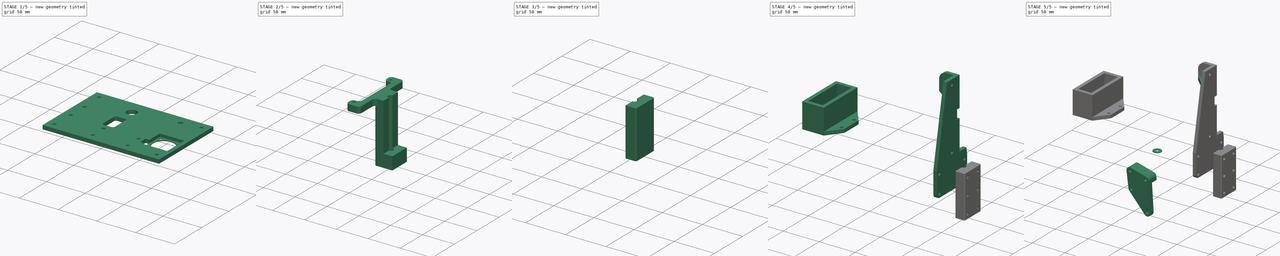
[diagram: build sequence overview — one tinted view per stage of 5, left to right]
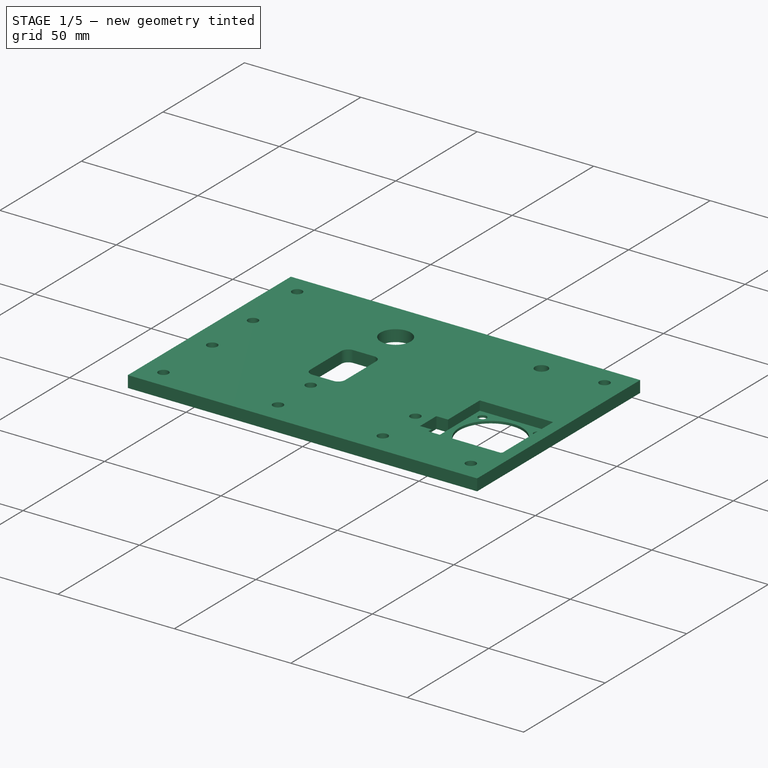
[diagram: stage 1 of 5 — iso view after this stage's code; geometry added in this stage tinted green]
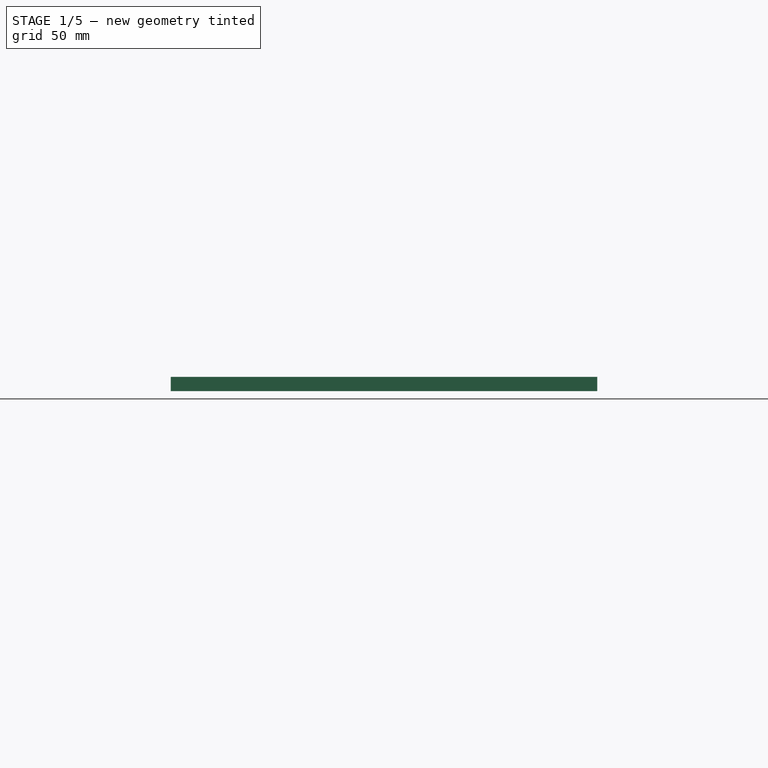
[diagram: stage 1 of 5 — front view after this stage's code; geometry added in this stage tinted green]
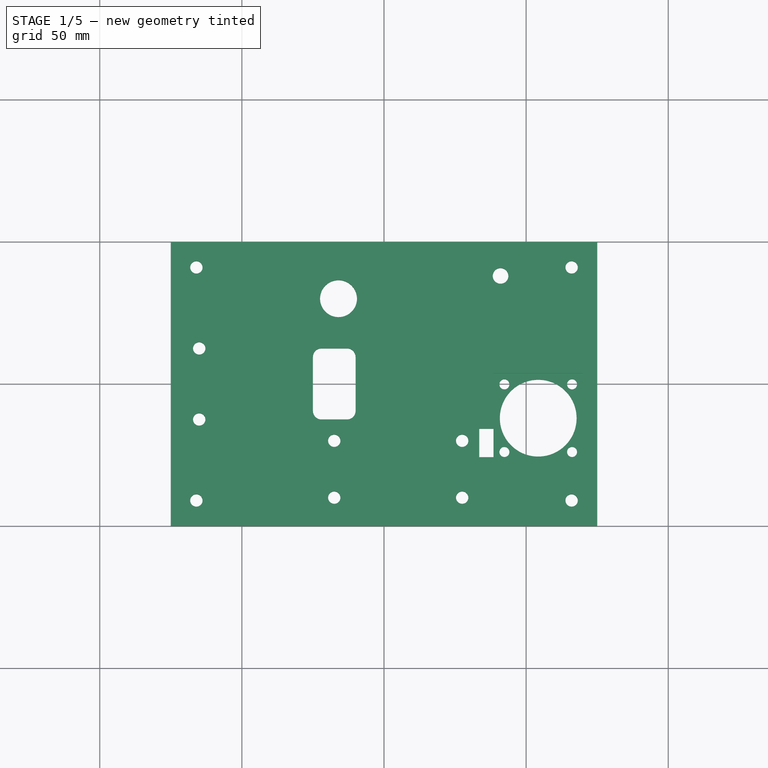
[diagram: stage 1 of 5 — top view after this stage's code; geometry added in this stage tinted green]
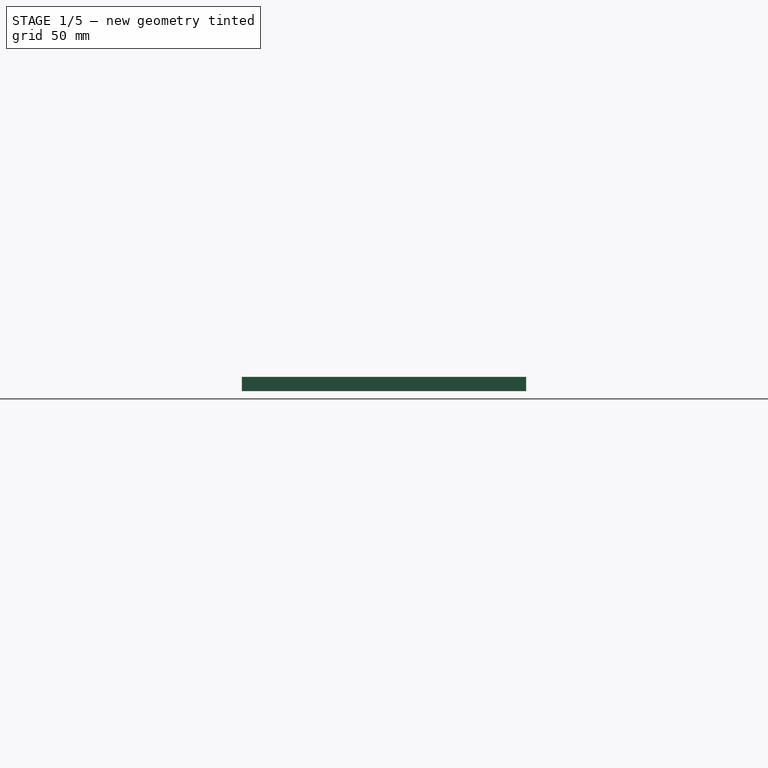
[diagram: stage 1 of 5 — right view after this stage's code; geometry added in this stage tinted green]
FCSTD DOCUMENT  (FreeCAD 1.1R42987 (Git))
Label: Body
License: All rights reserved
LicenseURL: https://en.wikipedia.org/wiki/All_rights_reserved
objects: Sketcher::SketchObject×34, PartDesign::Pad×22, PartDesign::Pocket×12, App::Point×10, PartDesign::Body×10, PartDesign::SubShapeBinder×8, PartDesign::Fillet×7, PartDesign::Mirrored×3, PartDesign::Chamfer×3, Part::DatumPlane×2, PartDesign::PolarPattern×1
note: 226 computed .brp shape members not serialized (recipe doc carries the construction recipe); baked Part::Feature solids carry a one-line shape summary decoded from their .brp
EXTERNAL_REF file=../Variables.FCStd obj=Spreadsheet

FEATURE [App::Point] Origin001
  Role = Origin
FEATURE [Sketcher::SketchObject] Sketch
  ArcFitTolerance = 1e-06
  AttachmentSupport = -> [XY_Plane]
  ExternalTypes = [0]
  FullyConstrained = true
  MakeInternals = false
  MapMode = 5
  expr: Constraints[22] = Variables#Spreadsheet.M4TapDiam
  expr: Constraints[9] = Variables#Spreadsheet.WheelBaseSize
  sketch-geometry (49):
    g0: LineSegment StartX=-75 StartY=-50 StartZ=0 EndX=75 EndY=-50 EndZ=0
    g1: LineSegment StartX=75 StartY=-50 StartZ=0 EndX=75 EndY=50 EndZ=0
    g2: LineSegment StartX=75 StartY=50 StartZ=0 EndX=-75 EndY=50 EndZ=0
    g3: LineSegment StartX=-75 StartY=50 StartZ=0 EndX=-75 EndY=-50 EndZ=0
    g4: GeomPoint [constr] X=0 Y=0 Z=0
    g5: LineSegment StartX=-70 StartY=37 StartZ=0 EndX=-70 EndY=-37 EndZ=0
    g6: LineSegment StartX=70 StartY=-37 StartZ=0 EndX=70 EndY=37 EndZ=0
    g7: GeomPoint [constr] X=0 Y=0 Z=0
    g8: LineSegment [constr] StartX=-70 StartY=-45 StartZ=0 EndX=-75 EndY=-45 EndZ=0
    g9: LineSegment [constr] StartX=-75 StartY=-45 StartZ=0 EndX=-75 EndY=-50 EndZ=0
    g10: LineSegment [constr] StartX=-75 StartY=-50 StartZ=0 EndX=-70 EndY=-50 EndZ=0
    g11: LineSegment [constr] StartX=-70 StartY=-50 StartZ=0 EndX=-70 EndY=-45 EndZ=0
    g12: Circle CenterX=-66 CenterY=-41 CenterZ=0 NormalX=0 NormalY=0 NormalZ=1 AngleXU=0 Radius=1.8
    g13: LineSegment [constr] StartX=-66 StartY=-41 StartZ=0 EndX=-70 EndY=-41 EndZ=0
    g14: LineSegment [constr] StartX=-70 StartY=-41 StartZ=0 EndX=-70 EndY=-45 EndZ=0
    g15: LineSegment [constr] StartX=-70 StartY=-45 StartZ=0 EndX=-66 EndY=-45 EndZ=0
    g16: LineSegment [constr] StartX=-66 StartY=-45 StartZ=0 EndX=-66 EndY=-41 EndZ=0
    g17: LineSegment StartX=-70 StartY=-37 StartZ=0 EndX=-63.5 EndY=-37 EndZ=0
    g18: LineSegment StartX=-62 StartY=-38.5 StartZ=0 EndX=-62 EndY=-45 EndZ=0
    g19: LineSegment StartX=-62 StartY=-45 StartZ=0 EndX=62 EndY=-45 EndZ=0
    g20: LineSegment StartX=62 StartY=-45 StartZ=0 EndX=62 EndY=-38.5 EndZ=0
    g21: LineSegment StartX=63.5 StartY=-37 StartZ=0 EndX=70 EndY=-37 EndZ=0
    g22: Circle CenterX=66 CenterY=-41 CenterZ=0 NormalX=0 NormalY=0 NormalZ=1 AngleXU=0 Radius=1.8
    g23: GeomPoint X=70 Y=-45 Z=0
    g24: LineSegment [constr] StartX=70 StartY=-45 StartZ=0 EndX=70 EndY=-50 EndZ=0
    g25: LineSegment [constr] StartX=70 StartY=-50 StartZ=0 EndX=75 EndY=-50 EndZ=0
    g26: LineSegment [constr] StartX=75 StartY=-50 StartZ=0 EndX=75 EndY=-45 EndZ=0
    g27: LineSegment [constr] StartX=75 StartY=-45 StartZ=0 EndX=70 EndY=-45 EndZ=0
    g28: LineSegment StartX=-70 StartY=37 StartZ=0 EndX=-63.5 EndY=37 EndZ=0
    g29: LineSegment StartX=-62 StartY=38.5 StartZ=0 EndX=-62 EndY=45 EndZ=0
    g30: GeomPoint X=-70 Y=45 Z=0
    g31: Circle CenterX=-66 CenterY=41 CenterZ=0 NormalX=0 NormalY=0 NormalZ=1 AngleXU=0 Radius=1.8
    g32: LineSegment [constr] StartX=-70 StartY=45 StartZ=0 EndX=-70 EndY=50 EndZ=0
    g33: LineSegment [constr] StartX=-70 StartY=50 StartZ=0 EndX=-75 EndY=50 EndZ=0
    g34: LineSegment [constr] StartX=-75 StartY=50 StartZ=0 EndX=-75 EndY=45 EndZ=0
    g35: LineSegment [constr] StartX=-75 StartY=45 StartZ=0 EndX=-70 EndY=45 EndZ=0
    g36: LineSegment StartX=62 StartY=45 StartZ=0 EndX=62 EndY=38.5 EndZ=0
    g37: LineSegment StartX=63.5 StartY=37 StartZ=0 EndX=70 EndY=37 EndZ=0
    g38: LineSegment StartX=62 StartY=45 StartZ=0 EndX=-62 EndY=45 EndZ=0
    g39: GeomPoint X=70 Y=45 Z=0
    g40: Circle CenterX=66 CenterY=41 CenterZ=0 NormalX=0 NormalY=0 NormalZ=1 AngleXU=0 Radius=1.8
    g41: ArcOfCircle CenterX=-63.5 CenterY=-38.5 CenterZ=0 NormalX=0 NormalY=0 NormalZ=1 AngleXU=0 Radius=1.5 StartAngle=1.3e-15 EndAngle=1.5708
    g42: GeomPoint [constr] X=-62 Y=-37 Z=0
    g43: ArcOfCircle CenterX=63.5 CenterY=-38.5 CenterZ=0 NormalX=0 NormalY=0 NormalZ=1 AngleXU=0 Radius=1.5 StartAngle=1.5708 EndAngle=3.14159
    g44: GeomPoint [constr] X=62 Y=-37 Z=0
    g45: ArcOfCircle CenterX=63.5 CenterY=38.5 CenterZ=0 NormalX=0 NormalY=0 NormalZ=1 AngleXU=0 Radius=1.5 StartAngle=3.14159 EndAngle=4.71239
    g46: GeomPoint [constr] X=62 Y=37 Z=0
    g47: ArcOfCircle CenterX=-63.5 CenterY=38.5 CenterZ=0 NormalX=0 NormalY=0 NormalZ=1 AngleXU=0 Radius=1.5 StartAngle=4.71239 EndAngle=6.28319
    g48: GeomPoint [constr] X=-62 Y=37 Z=0
  constraints (120):
    c: Coincident(g0,g1)
    c: Coincident(g2,g3)
    c: Coincident(g3,g0)
    c: Horizontal(g0)
    c: Horizontal(g2)
    c: Vertical(g1)
    c: Vertical(g3)
    c: Symmetric(g2,g0,g4)
    c: Coincident(g4,g-1)
    c: DistanceY(g3,g3) = 100
    c: Vertical(g6)
    c: Coincident(g7,g4)
    c: Coincident(g8,g9)
    c: Coincident(g9,g10)
    c: Coincident(g10,g11)
    c: Coincident(g11,g8)
    c: Horizontal(g8)
    c: Horizontal(g10)
    c: Vertical(g9)
    c: Vertical(g11)
    c: Coincident(g9,g0)
    c: Equal(g11,g8)
    c: Diameter(g12) = 3.6
    c: Coincident(g13,g14)
    c: Coincident(g14,g15)
    c: Coincident(g15,g16)
    c: Coincident(g16,g13)
    c: Horizontal(g13)
    c: Horizontal(g15)
    c: Vertical(g14)
    c: Vertical(g16)
    c: Coincident(g13,g12)
    c: Horizontal(g17)
    c: Vertical(g18)
    c: Horizontal(g19)
    c: Coincident(g18,g19)
    c: Vertical(g5)
    c: Coincident(g17,g5)
    c: Coincident(g14,g8)
    c: Horizontal(g18,g15)
    c: Symmetric(g42,g8,g12)
    c: Vertical(g5,g13)
    c: Vertical(g20)
    c: Horizontal(g21)
    c: Equal(g22,g12)
    c: Coincident(g19,g20)
    c: Coincident(g6,g21)
    c: Vertical(g23,g6)
    c: Horizontal(g23,g19)
    c: Symmetric(g44,g23,g22)
    c: Coincident(g24,g25)
    c: Coincident(g25,g26)
    c: Coincident(g26,g27)
    c: Coincident(g27,g24)
    c: Vertical(g24)
    c: Vertical(g26)
    c: Horizontal(g25)
    c: Horizontal(g27)
    c: Coincident(g24,g23)
    c: Coincident(g25,g0)
    c: Equal(g27,g24)
    c: Horizontal(g28)
    c: Vertical(g29)
    c: Coincident(g5,g28)
    c: Horizontal(g30,g29)
    c: Vertical(g30,g5)
    c: Symmetric(g48,g30,g31)
    c: Equal(g31,g12)
    c: Coincident(g32,g33)
    c: Coincident(g33,g34)
    c: Coincident(g34,g35)
    c: Coincident(g35,g32)
    c: Vertical(g32)
    c: Vertical(g34)
    c: Horizontal(g33)
    c: Horizontal(g35)
    c: Coincident(g32,g30)
    c: Coincident(g33,g2)
    c: Equal(g32,g35)
    c: Horizontal(g37)
    c: Vertical(g36)
    c: Coincident(g38,g36)
    c: Coincident(g38,g29)
    c: Horizontal(g38)
    c: Coincident(g37,g6)
    c: Coincident(g1,g2)
    c: Horizontal(g39,g36)
    c: Vertical(g39,g6)
    c: Symmetric(g39,g46,g40)
    c: Equal(g40,g22)
    c: PointOnObject(g42,g17)
    c: PointOnObject(g42,g18)
    c: Tangent(g17,g41) = 1.5708
    c: Tangent(g18,g41) = 1.5708
    c: Radius(g41) = 1.5
    c: PointOnObject(g44,g20)
    c: PointOnObject(g44,g21)
    c: Tangent(g20,g43) = 1.5708
    c: Tangent(g21,g43) = 1.5708
    c: Equal(g41,g43)
    c: PointOnObject(g46,g36)
    c: PointOnObject(g46,g37)
    c: Tangent(g36,g45) = -1.5708
    c: Tangent(g37,g45) = -1.5708
    c: Equal(g37,g36)
    c: Equal(g43,g45)
    c: PointOnObject(g48,g28)
    c: PointOnObject(g48,g29)
    c: Tangent(g28,g47) = -1.5708
    c: Tangent(g29,g47) = -1.5708
    c: Equal(g47,g41)
    c: Equal(g17,g28)
    c: Equal(g28,g29)
    c: DistanceY(g14,g14) = 4
    c: DistanceX(g8,g15) = 4
    c: DistanceY(g0,g18) = 5
    c: DistanceX(g0,g0) = 150
    c: Equal(g21,g37)
    c: Equal(g20,g18)
    c: Equal(g37,g28)
FEATURE [PartDesign::Pad] Pad
  Direction = (0,0,1)
  Length = 35
  Length2 = 10
  Profile = -> Sketch
  ReferenceAxis = -> Sketch [N_Axis]
  Refine = true
  Suppressed = false
  Type = 0
FEATURE [Sketcher::SketchObject] Sketch001
  ArcFitTolerance = 1e-06
  AttachmentSupport = -> [Pad]
  ExternalGeometry = -> [Pad]
  ExternalTypes = [0,0,0,0,0,0,0,0,0]
  FullyConstrained = true
  MakeInternals = false
  MapMode = 5
  Placement = pos=(0,0,0) rot=(1,0,0;3.14159rad)
  expr: Constraints[12] = Variables#Spreadsheet.M3ThroughBoreDiam
  expr: Constraints[22] = Variables#Spreadsheet.SupportSliderMountLineDist
  expr: Constraints[26] = Variables#Spreadsheet.M4TapDiam
  sketch-geometry (21):
    g0: LineSegment [constr] StartX=-50 StartY=-19 StartZ=0 EndX=8 EndY=-19 EndZ=0
    g1: LineSegment [constr] StartX=8 StartY=-19 StartZ=0 EndX=8 EndY=30 EndZ=0
    g2: LineSegment [constr] StartX=8 StartY=30 StartZ=0 EndX=-50 EndY=30 EndZ=0
    g3: LineSegment [constr] StartX=-50 StartY=30 StartZ=0 EndX=-50 EndY=-19 EndZ=0
    g4: GeomPoint [constr] X=-21 Y=5.5 Z=0
    g5: Circle CenterX=8 CenterY=-19 CenterZ=0 NormalX=0 NormalY=0 NormalZ=1 AngleXU=0 Radius=1.75
    g6: Circle CenterX=-50 CenterY=-19 CenterZ=0 NormalX=0 NormalY=0 NormalZ=1 AngleXU=0 Radius=1.75
    g7: Circle CenterX=-50 CenterY=30 CenterZ=0 NormalX=0 NormalY=0 NormalZ=1 AngleXU=0 Radius=1.75
    g8: Circle CenterX=8 CenterY=30 CenterZ=0 NormalX=0 NormalY=0 NormalZ=1 AngleXU=0 Radius=1.75
    g9: LineSegment [constr] StartX=-66 StartY=41 StartZ=0 EndX=-57.5476 EndY=22.8738 EndZ=0
    g10: Circle CenterX=-57.5476 CenterY=22.8738 CenterZ=0 NormalX=0 NormalY=0 NormalZ=1 AngleXU=0 Radius=1.8
    g11: Circle CenterX=-61.7738 CenterY=31.9369 CenterZ=0 NormalX=0 NormalY=0 NormalZ=1 AngleXU=0 Radius=1.8
    g12: LineSegment [constr] StartX=-66 StartY=-41 StartZ=0 EndX=-48.6795 EndY=-31 EndZ=0
    g13: Circle CenterX=-48.6795 CenterY=-31 CenterZ=0 NormalX=0 NormalY=0 NormalZ=1 AngleXU=0 Radius=1.8
    g14: Circle CenterX=-57.3397 CenterY=-36 CenterZ=0 NormalX=0 NormalY=0 NormalZ=1 AngleXU=0 Radius=1.8
    g15: LineSegment [constr] StartX=66 StartY=-41 StartZ=0 EndX=51.8579 EndY=-26.8579 EndZ=0
    g16: Circle CenterX=58.9289 CenterY=-33.9289 CenterZ=0 NormalX=0 NormalY=0 NormalZ=1 AngleXU=0 Radius=1.8
    g17: Circle CenterX=51.8579 CenterY=-26.8579 CenterZ=0 NormalX=0 NormalY=0 NormalZ=1 AngleXU=0 Radius=1.8
    g18: LineSegment [constr] StartX=66 StartY=41 StartZ=0 EndX=51.8579 EndY=26.8579 EndZ=0
    g19: Circle CenterX=58.9289 CenterY=33.9289 CenterZ=0 NormalX=0 NormalY=0 NormalZ=1 AngleXU=0 Radius=1.8
    g20: Circle CenterX=51.8579 CenterY=26.8579 CenterZ=0 NormalX=0 NormalY=0 NormalZ=1 AngleXU=0 Radius=1.8
  constraints (49):
    c: Coincident(g0,g1)
    c: Coincident(g1,g2)
    c: Coincident(g2,g3)
    c: Coincident(g3,g0)
    c: Horizontal(g0)
    c: Horizontal(g2)
    c: Vertical(g1)
    c: Vertical(g3)
    c: Symmetric(g2,g0,g4)
    c: DistanceY(g1,g1) = 49
    c: DistanceX(g0,g0) = 58
    c: Coincident(g5,g0)
    c: Diameter(g5) = 3.5
    c: Coincident(g6,g0)
    c: Coincident(g7,g2)
    c: Coincident(g8,g1)
    c: Equal(g8,g7)
    c: Equal(g7,g6)
    c: Equal(g6,g5)
    c: Distance(g4,g-2) = 21
    c: Distance(g-7,g2) = 15
    c: Coincident(g9,g-8)
    c: Distance(g9,g9) = 20
    c: Coincident(g10,g9)
    c: Symmetric(g9,g9,g11)
    c: Equal(g10,g11)
    c: Diameter(g11) = 3.6
    c: Angle(g-6,g9) = 0.436332
    c: Coincident(g12,g-9)
    c: Equal(g12,g9)
    c: Coincident(g13,g12)
    c: Symmetric(g12,g12,g14)
    c: Equal(g13,g14)
    c: Equal(g13,g10)
    c: Angle(g12,g-6) = 1.0472
    c: Coincident(g15,g-10)
    c: Symmetric(g15,g15,g16)
    c: Coincident(g17,g15)
    c: Equal(g16,g17)
    c: Equal(g17,g13)
    c: Equal(g15,g12)
    c: Angle(g15,g-5) = 0.785398
    c: Coincident(g18,g-11)
    c: Symmetric(g18,g18,g19)
    c: Coincident(g20,g18)
    c: Equal(g20,g19)
    c: Equal(g19,g17)
    c: Equal(g15,g18)
    c: Angle(g18,g-4) = 0.785398
FEATURE [PartDesign::Pad] Pad001
  BaseFeature = -> Pad
  Direction = (0,0,-1)
  Length = 7.5
  Length2 = 10
  Profile = -> Sketch001
  ReferenceAxis = -> Sketch001 [N_Axis]
  Refine = true
  Suppressed = false
  Type = 0
FEATURE [Sketcher::SketchObject] Sketch002
  ArcFitTolerance = 1e-06
  ExternalGeometry = -> [Pad001]
  ExternalTypes = [0]
  FullyConstrained = true
  MakeInternals = false
  MapMode = 5
  Placement = pos=(0,-50,0) rot=(1,0,0;1.5708rad)
  expr: Constraints[13] = <<Variables>>#Spreadsheet.M4ThroughBoreDiam
  sketch-geometry (11):
    g0: GeomPoint [constr] X=75 Y=13.75 Z=0
    g1: LineSegment [constr] StartX=-37.5 StartY=23.75 StartZ=0 EndX=-37.5 EndY=3.75 EndZ=0
    g2: LineSegment [constr] StartX=-37.5 StartY=3.75 StartZ=0 EndX=37.5 EndY=3.75 EndZ=0
    g3: LineSegment [constr] StartX=37.5 StartY=3.75 StartZ=0 EndX=37.5 EndY=23.75 EndZ=0
    g4: LineSegment [constr] StartX=37.5 StartY=23.75 StartZ=0 EndX=-37.5 EndY=23.75 EndZ=0
    g5: GeomPoint [constr] X=0 Y=13.75 Z=0
    g6: Circle CenterX=-37.5 CenterY=23.75 CenterZ=0 NormalX=0 NormalY=0 NormalZ=1 AngleXU=0 Radius=2.175
    g7: Circle CenterX=-37.5 CenterY=3.75 CenterZ=0 NormalX=0 NormalY=0 NormalZ=1 AngleXU=0 Radius=2.175
    g8: Circle CenterX=37.5 CenterY=3.75 CenterZ=0 NormalX=0 NormalY=0 NormalZ=1 AngleXU=0 Radius=2.175
    g9: Circle CenterX=37.5 CenterY=23.75 CenterZ=0 NormalX=0 NormalY=0 NormalZ=1 AngleXU=0 Radius=2.175
    g10: Circle CenterX=0 CenterY=13.75 CenterZ=0 NormalX=0 NormalY=0 NormalZ=1 AngleXU=0 Radius=2.175
  constraints (24):
    c: Coincident(g1,g2)
    c: Coincident(g2,g3)
    c: Coincident(g3,g4)
    c: Coincident(g4,g1)
    c: Vertical(g1)
    c: Vertical(g3)
    c: Horizontal(g2)
    c: Horizontal(g4)
    c: Symmetric(g3,g1,g5)
    c: PointOnObject(g5,g-2)
    c: Horizontal(g0,g5)
    c: DistanceY(g3,g3) = 20
    c: DistanceX(g2,g2) = 75
    c: Diameter(g6) = 4.35
    c: Coincident(g7,g1)
    c: Coincident(g8,g2)
    c: Coincident(g9,g3)
    c: Equal(g8,g9)
    c: Equal(g9,g7)
    c: Equal(g7,g6)
    c: Coincident(g6,g1)
    c: Coincident(g10,g5)
    c: Equal(g10,g9)
    c: Symmetric(g-3,g-3,g0)
FEATURE [PartDesign::Pocket] Pocket002
  BaseFeature = -> Pad001
  Direction = (0,1,-2e-16)
  Length = 0
  Length2 = 5
  Profile = -> Sketch002
  ReferenceAxis = -> Sketch002 [N_Axis]
  Refine = true
  Suppressed = false
  Type = 3
  UpToFace = -> Pad001 [Face43]
FEATURE [Sketcher::SketchObject] Sketch004
  ArcFitTolerance = 1e-06
  AttachmentSupport = -> [Pocket002]
  ExternalGeometry = -> [Pocket002]
  ExternalTypes = [0]
  FullyConstrained = true
  MakeInternals = false
  MapMode = 5
  Placement = pos=(75,0,0) rot=(0.57735,0.57735,0.57735;2.0944rad)
  expr: Constraints[12] = Variables#Spreadsheet.M4ThroughBoreDiam
  sketch-geometry (10):
    g0: LineSegment [constr] StartX=-25 StartY=5 StartZ=0 EndX=25 EndY=5 EndZ=0
    g1: LineSegment [constr] StartX=25 StartY=5 StartZ=0 EndX=25 EndY=30 EndZ=0
    g2: LineSegment [constr] StartX=25 StartY=30 StartZ=0 EndX=-25 EndY=30 EndZ=0
    g3: LineSegment [constr] StartX=-25 StartY=30 StartZ=0 EndX=-25 EndY=5 EndZ=0
    g4: GeomPoint [constr] X=-5.97e-14 Y=17.5 Z=0
    g5: Circle CenterX=25 CenterY=30 CenterZ=0 NormalX=0 NormalY=0 NormalZ=1 AngleXU=0 Radius=2.175
    g6: Circle CenterX=25 CenterY=5 CenterZ=0 NormalX=0 NormalY=0 NormalZ=1 AngleXU=0 Radius=2.175
    g7: Circle CenterX=-25 CenterY=5 CenterZ=0 NormalX=0 NormalY=0 NormalZ=1 AngleXU=0 Radius=2.175
    g8: Circle CenterX=-25 CenterY=30 CenterZ=0 NormalX=0 NormalY=0 NormalZ=1 AngleXU=0 Radius=2.175
    g9: GeomPoint [constr] X=-1.194e-13 Y=35 Z=0
  constraints (21):
    c: Coincident(g0,g1)
    c: Coincident(g1,g2)
    c: Coincident(g2,g3)
    c: Coincident(g3,g0)
    c: Horizontal(g0)
    c: Horizontal(g2)
    c: Vertical(g1)
    c: Vertical(g3)
    c: Symmetric(g2,g0,g4)
    c: Distance(g1,g3) = 50
    c: Distance(g0,g2) = 25
    c: Coincident(g5,g1)
    c: Diameter(g5) = 4.35
    c: Coincident(g6,g0)
    c: Coincident(g7,g0)
    c: Coincident(g8,g2)
    c: Equal(g8,g7)
    c: Equal(g7,g6)
    c: Equal(g6,g5)
    c: Symmetric(g-3,g-3,g9)
    c: Symmetric(g-1,g9,g4)
FEATURE [PartDesign::Pocket] Pocket003
  BaseFeature = -> Pocket002
  Direction = (-1,0,0)
  Length = 0
  Length2 = 5
  Profile = -> Sketch004
  ReferenceAxis = -> Sketch004 [N_Axis]
  Refine = true
  Suppressed = false
  Type = 3
  UpToFace = -> Pocket002 [Face15]
FEATURE [Sketcher::SketchObject] Sketch007
  ArcFitTolerance = 1e-06
  AttachmentSupport = -> [Pocket003]
  ExternalGeometry = -> [Pocket003]
  ExternalTypes = [0]
  FullyConstrained = true
  MakeInternals = false
  MapMode = 5
  Placement = pos=(0,-50,0) rot=(1,0,0;1.5708rad)
  sketch-geometry (14):
    g0: LineSegment StartX=48 StartY=5 StartZ=0 EndX=52 EndY=5 EndZ=0
    g1: LineSegment StartX=55 StartY=8 StartZ=0 EndX=55 EndY=27 EndZ=0
    g2: LineSegment StartX=52 StartY=30 StartZ=0 EndX=48 EndY=30 EndZ=0
    g3: LineSegment StartX=45 StartY=27 StartZ=0 EndX=45 EndY=8 EndZ=0
    g4: GeomPoint [constr] X=50 Y=17.5 Z=0
    g5: GeomPoint X=70 Y=17.5 Z=0
    g6: ArcOfCircle CenterX=48 CenterY=27 CenterZ=0 NormalX=0 NormalY=0 NormalZ=1 AngleXU=0 Radius=3 StartAngle=1.5708 EndAngle=3.14159
    g7: GeomPoint [constr] X=45 Y=30 Z=0
    g8: ArcOfCircle CenterX=52 CenterY=27 CenterZ=0 NormalX=0 NormalY=0 NormalZ=1 AngleXU=0 Radius=3 StartAngle=1.59e-14 EndAngle=1.5708
    g9: GeomPoint [constr] X=55 Y=30 Z=0
    g10: ArcOfCircle CenterX=52 CenterY=8 CenterZ=0 NormalX=0 NormalY=0 NormalZ=1 AngleXU=0 Radius=3 StartAngle=4.71239 EndAngle=6.28319
    g11: GeomPoint [constr] X=55 Y=5 Z=0
    g12: ArcOfCircle CenterX=48 CenterY=8 CenterZ=0 NormalX=0 NormalY=0 NormalZ=1 AngleXU=0 Radius=3 StartAngle=3.14159 EndAngle=4.71239
    g13: GeomPoint [constr] X=45 Y=5 Z=0
  constraints (30):
    c: Horizontal(g0)
    c: Horizontal(g2)
    c: Vertical(g1)
    c: Vertical(g3)
    c: Symmetric(g9,g13,g4)
    c: Distance(g11,g13) = 10
    c: Distance(g13,g7) = 25
    c: Horizontal(g5,g4)
    c: PointOnObject(g7,g2)
    c: PointOnObject(g7,g3)
    c: Tangent(g2,g6) = -1.5708
    c: Tangent(g3,g6) = -1.5708
    c: PointOnObject(g9,g1)
    c: PointOnObject(g9,g2)
    c: Tangent(g1,g8) = -1.5708
    c: Tangent(g2,g8) = -1.5708
    c: PointOnObject(g11,g0)
    c: PointOnObject(g11,g1)
    c: Tangent(g0,g10) = -1.5708
    c: Tangent(g1,g10) = -1.5708
    c: PointOnObject(g13,g0)
    c: PointOnObject(g13,g3)
    c: Tangent(g0,g12) = -1.5708
    c: Tangent(g3,g12) = -1.5708
    c: Radius(g12) = 3
    c: Equal(g12,g10)
    c: Equal(g10,g8)
    c: Equal(g8,g6)
    c: Symmetric(g-3,g-3,g5)
    c: Distance(g4,g-3) = 20
FEATURE [PartDesign::Pocket] Pocket005
  BaseFeature = -> Pocket003
  Direction = (0,1,-2e-16)
  Length = 0
  Length2 = 5
  Profile = -> Sketch007
  ReferenceAxis = -> Sketch007 [N_Axis]
  Refine = true
  Suppressed = false
  Type = 3
  UpToFace = -> Pocket003 [Face11]
FEATURE [PartDesign::PolarPattern] PolarPattern
  Angle = 360
  Axis = -> Y_Axis
  BaseFeature = -> Pocket005
  Mode = 0
  Occurrences = 2
  Offset = 120
  Originals = -> [Pocket005]
  Refine = true
  Suppressed = false
  TransformMode = 0
FEATURE [Sketcher::SketchObject] Sketch008
  ArcFitTolerance = 1e-06
  AttachmentSupport = -> [PolarPattern]
  ExternalTypes = [0,0]
  FullyConstrained = true
  MakeInternals = false
  MapMode = 5
  Placement = pos=(-75,0,0) rot=(0.57735,-0.57735,-0.57735;2.0944rad)
  sketch-geometry (9):
    g0: LineSegment StartX=31 StartY=32 StartZ=0 EndX=-31 EndY=32 EndZ=0
    g1: ArcOfCircle CenterX=-31 CenterY=28 CenterZ=0 NormalX=0 NormalY=0 NormalZ=1 AngleXU=0 Radius=4 StartAngle=1.5708 EndAngle=3.14159
    g2: GeomPoint [constr] X=-35 Y=32 Z=0
    g3: ArcOfCircle CenterX=31 CenterY=28 CenterZ=0 NormalX=0 NormalY=0 NormalZ=1 AngleXU=0 Radius=4 StartAngle=-5.6e-14 EndAngle=1.5708
    g4: GeomPoint [constr] X=35 Y=32 Z=0
    g5: LineSegment StartX=-35 StartY=28 StartZ=0 EndX=-35 EndY=-5.68e-14 EndZ=0
    g6: LineSegment StartX=35 StartY=28 StartZ=0 EndX=35 EndY=-5.68e-14 EndZ=0
    g7: GeomPoint X=0 Y=32 Z=0
    g8: LineSegment StartX=-35 StartY=-5.68e-14 StartZ=0 EndX=35 EndY=-5.68e-14 EndZ=0
  constraints (21):
    c: Horizontal(g0)
    c: PointOnObject(g2,g0)
    c: PointOnObject(g4,g0)
    c: Tangent(g0,g3) = -1.5708
    c: PointOnObject(g5,g-1)
    c: Vertical(g5)
    c: Vertical(g6)
    c: Tangent(g6,g3) = 1.5708
    c: Tangent(g5,g1) = -1.5708
    c: Vertical(g1,g2)
    c: Vertical(g3,g4)
    c: Equal(g3,g1)
    c: Radius(g1) = 4
    c: Distance(g6,g0) = 32
    c: Symmetric(g0,g0,g7)
    c: Vertical(g7,g-1)
    c: Tangent(g0,g1) = -1.5708
    c: Coincident(g8,g5)
    c: Coincident(g8,g6)
    c: Horizontal(g8)
    c: DistanceX(g2,g4) = 70
FEATURE [PartDesign::Pocket] Pocket006
  BaseFeature = -> PolarPattern
  Direction = (1,0,0)
  Length = 0
  Length2 = 5
  Profile = -> Sketch008
  ReferenceAxis = -> Sketch008 [N_Axis]
  Refine = true
  Suppressed = false
  Type = 3
  UpToFace = -> PolarPattern [Face7]
FEATURE [Sketcher::SketchObject] Sketch009
  ArcFitTolerance = 1e-06
  AttachmentSupport = -> [Pocket006]
  ExternalGeometry = -> [Pocket006]
  ExternalTypes = [0,0,0,0]
  FullyConstrained = true
  MakeInternals = false
  MapMode = 5
  Placement = pos=(0,0,-9.7e-15) rot=(0,0,1;0rad)
  sketch-geometry (4):
    g0: Circle CenterX=-50 CenterY=19 CenterZ=0 NormalX=0 NormalY=0 NormalZ=1 AngleXU=0 Radius=3
    g1: Circle CenterX=-50 CenterY=-30 CenterZ=0 NormalX=0 NormalY=0 NormalZ=1 AngleXU=0 Radius=3
    g2: Circle CenterX=8 CenterY=-30 CenterZ=0 NormalX=0 NormalY=0 NormalZ=1 AngleXU=0 Radius=3
    g3: Circle CenterX=8 CenterY=19 CenterZ=0 NormalX=0 NormalY=0 NormalZ=1 AngleXU=0 Radius=3
  constraints (8):
    c: Diameter(g0) = 6
    c: Coincident(g0,g-3)
    c: Coincident(g1,g-4)
    c: Coincident(g2,g-5)
    c: Coincident(g3,g-6)
    c: Equal(g3,g2)
    c: Equal(g2,g1)
    c: Equal(g1,g0)
FEATURE [PartDesign::Pad] Pad004
  BaseFeature = -> Pocket006
  Direction = (0,0,1)
  Length = 3
  Length2 = 10
  Profile = -> Sketch009
  ReferenceAxis = -> Sketch009 [N_Axis]
  Refine = true
  Suppressed = false
  Type = 0
FEATURE [PartDesign::Body] Body
  AllowCompound = true
  Group = -> [Sketch,Pad,Sketch001,Pad001,Sketch002,Pocket002,Sketch004,Pocket003,Sketch007,Pocket005,PolarPattern,Sketch008,Pocket006,Sketch009,Pad004]
  Origin = -> Origin
  Tip = -> Pad004
FEATURE [App::Point] Origin007
  Role = Origin
FEATURE [PartDesign::SubShapeBinder] Binder002
  BindCopyOnChange = 0
  BindMode = 0
  ClaimChildren = false
  Context = -> Body003 [Binder002.]
  Fuse = false
  MakeFace = true
  OffsetFill = false
  OffsetIntersection = false
  OffsetJoinType = 0
  OffsetOpenResult = false
  PartialLoad = false
  Refine = true
  Relative = true
  Support = -> [Body]
  _Version = 2
FEATURE [Sketcher::SketchObject] Sketch010
  ArcFitTolerance = 1e-06
  AttachmentSupport = -> [Binder002]
  ExternalGeometry = -> [Binder002]
  ExternalTypes = [0,0,0,0,0,0,0,0,0,0]
  FullyConstrained = true
  MakeInternals = false
  MapMode = 5
  Placement = pos=(0,0,35) rot=(0,0,1;0rad)
  expr: Constraints[1] = Variables#Spreadsheet.M4ThroughBoreDiam
  expr: Constraints[80] = Variables#Spreadsheet.SlidesMountX
  expr: Constraints[81] = Variables#Spreadsheet.SlidesMountY
  sketch-geometry (39):
    g0: Circle CenterX=66 CenterY=41 CenterZ=0 NormalX=0 NormalY=0 NormalZ=1 AngleXU=0 Radius=2.175
    g1: Circle CenterX=66 CenterY=-41 CenterZ=0 NormalX=0 NormalY=0 NormalZ=1 AngleXU=0 Radius=2.175
    g2: Circle CenterX=-66 CenterY=-41 CenterZ=0 NormalX=0 NormalY=0 NormalZ=1 AngleXU=0 Radius=2.175
    g3: Circle CenterX=-66 CenterY=41 CenterZ=0 NormalX=0 NormalY=0 NormalZ=1 AngleXU=0 Radius=2.175
    g4: LineSegment [constr] StartX=-65 StartY=12.5 StartZ=0 EndX=-65 EndY=-12.5 EndZ=0
    g5: Circle CenterX=-65 CenterY=12.5 CenterZ=0 NormalX=0 NormalY=0 NormalZ=1 AngleXU=0 Radius=2.175
    g6: Circle CenterX=-65 CenterY=-12.5 CenterZ=0 NormalX=0 NormalY=0 NormalZ=1 AngleXU=0 Radius=2.175
    g7: GeomPoint X=-65 Y=0 Z=0
    g8: LineSegment StartX=-25 StartY=9.5 StartZ=0 EndX=-25 EndY=-9.5 EndZ=0
    g9: LineSegment StartX=-22 StartY=-12.5 StartZ=0 EndX=-13 EndY=-12.5 EndZ=0
    g10: LineSegment StartX=-10 StartY=-9.5 StartZ=0 EndX=-10 EndY=9.5 EndZ=0
    g11: LineSegment StartX=-13 StartY=12.5 StartZ=0 EndX=-22 EndY=12.5 EndZ=0
    g12: ArcOfCircle CenterX=-22 CenterY=9.5 CenterZ=0 NormalX=0 NormalY=0 NormalZ=1 AngleXU=0 Radius=3 StartAngle=1.5708 EndAngle=3.14159
    g13: ArcOfCircle CenterX=-22 CenterY=-9.5 CenterZ=0 NormalX=0 NormalY=0 NormalZ=1 AngleXU=0 Radius=3 StartAngle=3.14159 EndAngle=4.71239
    g14: ArcOfCircle CenterX=-13 CenterY=-9.5 CenterZ=0 NormalX=0 NormalY=0 NormalZ=1 AngleXU=0 Radius=3 StartAngle=4.71239 EndAngle=6.28319
    g15: ArcOfCircle CenterX=-13 CenterY=9.5 CenterZ=0 NormalX=0 NormalY=0 NormalZ=1 AngleXU=0 Radius=3 StartAngle=0 EndAngle=1.5708
    g16: GeomPoint [constr] X=-25 Y=12.5 Z=0
    g17: GeomPoint [constr] X=-10 Y=-12.5 Z=0
    g18: GeomPoint X=-17.5 Y=0 Z=0
    g19: Circle CenterX=-16 CenterY=30 CenterZ=0 NormalX=0 NormalY=0 NormalZ=1 AngleXU=0 Radius=6.5
    g20: LineSegment StartX=38.5 StartY=3.75 StartZ=0 EndX=38.5 EndY=-15.75 EndZ=0
    g21: LineSegment StartX=38.5 StartY=-27.75 StartZ=0 EndX=70 EndY=-27.75 EndZ=0
    g22: LineSegment StartX=70 StartY=3.75 StartZ=0 EndX=38.5 EndY=3.75 EndZ=0
    g23: GeomPoint [constr] X=54.25 Y=-12 Z=0
    g24: LineSegment StartX=70 StartY=3.75 StartZ=0 EndX=70 EndY=-27.75 EndZ=0
    g25: LineSegment StartX=38.5 StartY=-25.75 StartZ=0 EndX=33.5 EndY=-25.75 EndZ=0
    g26: LineSegment StartX=33.5 StartY=-25.75 StartZ=0 EndX=33.5 EndY=-15.75 EndZ=0
    g27: LineSegment StartX=33.5 StartY=-15.75 StartZ=0 EndX=38.5 EndY=-15.75 EndZ=0
    g28: LineSegment StartX=38.5 StartY=-25.75 StartZ=0 EndX=38.5 EndY=-27.75 EndZ=0
    g29: Circle CenterX=41 CenterY=38 CenterZ=0 NormalX=0 NormalY=0 NormalZ=1 AngleXU=0 Radius=2.75
    g30: LineSegment [constr] StartX=-17.5 StartY=-20 StartZ=0 EndX=-17.5 EndY=-40 EndZ=0
    g31: LineSegment [constr] StartX=-17.5 StartY=-40 StartZ=0 EndX=27.5 EndY=-40 EndZ=0
    g32: LineSegment [constr] StartX=27.5 StartY=-40 StartZ=0 EndX=27.5 EndY=-20 EndZ=0
    g33: LineSegment [constr] StartX=27.5 StartY=-20 StartZ=0 EndX=-17.5 EndY=-20 EndZ=0
    g34: GeomPoint [constr] X=5 Y=-30 Z=0
    g35: Circle CenterX=27.5 CenterY=-20 CenterZ=0 NormalX=0 NormalY=0 NormalZ=1 AngleXU=0 Radius=2.175
    g36: Circle CenterX=27.5 CenterY=-40 CenterZ=0 NormalX=0 NormalY=0 NormalZ=1 AngleXU=0 Radius=2.175
    g37: Circle CenterX=-17.5 CenterY=-40 CenterZ=0 NormalX=0 NormalY=0 NormalZ=1 AngleXU=0 Radius=2.175
    g38: Circle CenterX=-17.5 CenterY=-20 CenterZ=0 NormalX=0 NormalY=0 NormalZ=1 AngleXU=0 Radius=2.175
  constraints (94):
    c: Coincident(g0,g-9)
    c: Diameter(g0) = 4.35
    c: Coincident(g1,g-10)
    c: Coincident(g2,g-7)
    c: Coincident(g3,g-8)
    c: Equal(g3,g2)
    c: Equal(g2,g1)
    c: Equal(g1,g0)
    c: Distance(g4) = 25
    c: Coincident(g5,g4)
    c: Coincident(g6,g4)
    c: Equal(g5,g6)
    c: Equal(g6,g3)
    c: Symmetric(g4,g4,g7)
    c: PointOnObject(g7,g-1)
    c: Vertical(g4)
    c: Distance(g7,g-5) = 10
    c: Tangent(g8,g12) = -1.5708
    c: Tangent(g8,g13) = -1.5708
    c: Tangent(g9,g13) = -1.5708
    c: Tangent(g9,g14) = -1.5708
    c: Tangent(g10,g14) = -1.5708
    c: Tangent(g10,g15) = -1.5708
    c: Tangent(g11,g15) = -1.5708
    c: Tangent(g11,g12) = -1.5708
    c: Vertical(g8)
    c: Vertical(g10)
    c: Horizontal(g9)
    c: Horizontal(g11)
    c: Equal(g12,g13)
    c: Equal(g13,g14)
    c: Equal(g14,g15)
    c: PointOnObject(g16,g8)
    c: PointOnObject(g16,g11)
    c: PointOnObject(g17,g9)
    c: PointOnObject(g17,g10)
    c: DistanceY(g17,g16) = 25
    c: Symmetric(g13,g15,g18)
    c: Distance(g4,g8) = 40
    c: DistanceX(g16,g17) = 15
    c: Diameter(g19) = 13
    c: Distance(g19,g-11) = 15
    c: DistanceX(g3,g19) = 50
    c: Coincident(g28,g21)
    c: Coincident(g22,g20)
    c: Horizontal(g21)
    c: Horizontal(g22)
    c: Symmetric(g21,g20,g23)
    c: Distance(g20,g22) = 31.5
    c: PointOnObject(g18,g-1)
    c: Radius(g13) = 3
    c: DistanceY(g23,g-1) = 12
    c: Coincident(g24,g22)
    c: Coincident(g24,g21)
    c: Vertical(g24)
    c: Distance(g-4,g24) = 5
    c: Horizontal(g25)
    c: Coincident(g26,g25)
    c: Vertical(g26)
    c: Coincident(g27,g26)
    c: Horizontal(g27)
    c: DistanceY(g26,g26) = 10
    c: DistanceY(g28,g25) = 2
    c: Vertical(g20)
    c: Vertical(g28)
    c: Coincident(g25,g28)
    c: Coincident(g27,g20)
    c: Equal(g24,g22)
    c: Equal(g21,g22)
    c: Diameter(g29) = 5.5
    c: Distance(g29,g-11) = 7
    c: DistanceX(g29,g0) = 25
    c: Coincident(g30,g31)
    c: Coincident(g31,g32)
    c: Coincident(g32,g33)
    c: Coincident(g33,g30)
    c: Vertical(g30)
    c: Vertical(g32)
    c: Horizontal(g31)
    c: Horizontal(g33)
    c: DistanceX(g33,g33) = 45
    c: DistanceY(g30,g30) = 20
    c: Symmetric(g30,g32,g34)
    c: DistanceX(g25,g25) = 5
    c: DistanceY(g34,g-1) = 30
    c: Distance(g34,g-2) = 5
    c: Coincident(g35,g32)
    c: Coincident(g36,g31)
    c: Coincident(g37,g30)
    c: Equal(g38,g37)
    c: Equal(g37,g36)
    c: Equal(g36,g35)
    c: Equal(g35,g6)
    c: Coincident(g38,g30)
FEATURE [PartDesign::Pad] Pad005
  Direction = (0,0,1)
  Length = 5
  Length2 = 10
  Profile = -> Sketch010
  ReferenceAxis = -> Sketch010 [N_Axis]
  Refine = true
  Suppressed = false
  Type = 0
FEATURE [PartDesign::Body] Body007  label="Battery Mount"
  AllowCompound = true
  Group = -> [Binder005,Sketch022,Pad015,Sketch023,Pad016]
  Origin = -> Origin014
  Tip = -> Pad016
FEATURE [Sketcher::SketchObject] Sketch024
  ArcFitTolerance = 1e-06
  AttachmentSupport = -> [Pad005]
  ExternalGeometry = -> [Pad005]
  ExternalTypes = [0,0,0]
  FullyConstrained = true
  MakeInternals = false
  MapMode = 5
  Placement = pos=(0,0,35) rot=(1,0,0;3.14159rad)
  sketch-geometry (13):
    g0: LineSegment StartX=70 StartY=-3.75 StartZ=0 EndX=70 EndY=27.75 EndZ=0
    g1: GeomPoint X=54.25 Y=12 Z=0
    g2: LineSegment [constr] StartX=42.35 StartY=23.9 StartZ=0 EndX=42.35 EndY=0.1 EndZ=0
    g3: LineSegment [constr] StartX=42.35 StartY=0.1 StartZ=0 EndX=66.15 EndY=0.1 EndZ=0
    g4: LineSegment [constr] StartX=66.15 StartY=0.1 StartZ=0 EndX=66.15 EndY=23.9 EndZ=0
    g5: LineSegment [constr] StartX=66.15 StartY=23.9 StartZ=0 EndX=42.35 EndY=23.9 EndZ=0
    g6: GeomPoint [constr] X=54.25 Y=12 Z=0
    g7: Circle CenterX=66.15 CenterY=0.1 CenterZ=0 NormalX=0 NormalY=0 NormalZ=1 AngleXU=0 Radius=1.75
    g8: Circle CenterX=42.35 CenterY=0.1 CenterZ=0 NormalX=0 NormalY=0 NormalZ=1 AngleXU=0 Radius=1.75
    g9: Circle CenterX=42.35 CenterY=23.9 CenterZ=0 NormalX=0 NormalY=0 NormalZ=1 AngleXU=0 Radius=1.75
    g10: Circle CenterX=66.15 CenterY=23.9 CenterZ=0 NormalX=0 NormalY=0 NormalZ=1 AngleXU=0 Radius=1.75
    g11: Circle CenterX=54.25 CenterY=12 CenterZ=0 NormalX=0 NormalY=0 NormalZ=1 AngleXU=0 Radius=13.5
    g12: LineSegment StartX=38.5 StartY=15.75 StartZ=0 EndX=38.5 EndY=27.75 EndZ=0
  constraints (27):
    c: Coincident(g0,g-5)
    c: Coincident(g0,g-3)
    c: Symmetric(g-5,g0,g1)
    c: Coincident(g2,g3)
    c: Coincident(g3,g4)
    c: Coincident(g4,g5)
    c: Coincident(g5,g2)
    c: Vertical(g2)
    c: Vertical(g4)
    c: Horizontal(g3)
    c: Horizontal(g5)
    c: Symmetric(g4,g2,g6)
    c: Distance(g2,g4) = 23.8
    c: Coincident(g6,g1)
    c: Equal(g4,g3)
    c: Diameter(g7) = 3.5
    c: Coincident(g7,g3)
    c: Coincident(g8,g2)
    c: Coincident(g9,g2)
    c: Coincident(g10,g4)
    c: Equal(g7,g8)
    c: Equal(g8,g9)
    c: Equal(g10,g9)
    c: Diameter(g11) = 27
    c: Coincident(g11,g1)
    c: Coincident(g12,g-4)
    c: Coincident(g12,g-3)
FEATURE [PartDesign::Pad] Pad017
  BaseFeature = -> Pad005
  Direction = (0,0,-1)
  Length = 1
  Length2 = 10
  Profile = -> Sketch024
  ReferenceAxis = -> Sketch024 [N_Axis]
  Refine = true
  Reversed = true
  Suppressed = false
  Type = 0
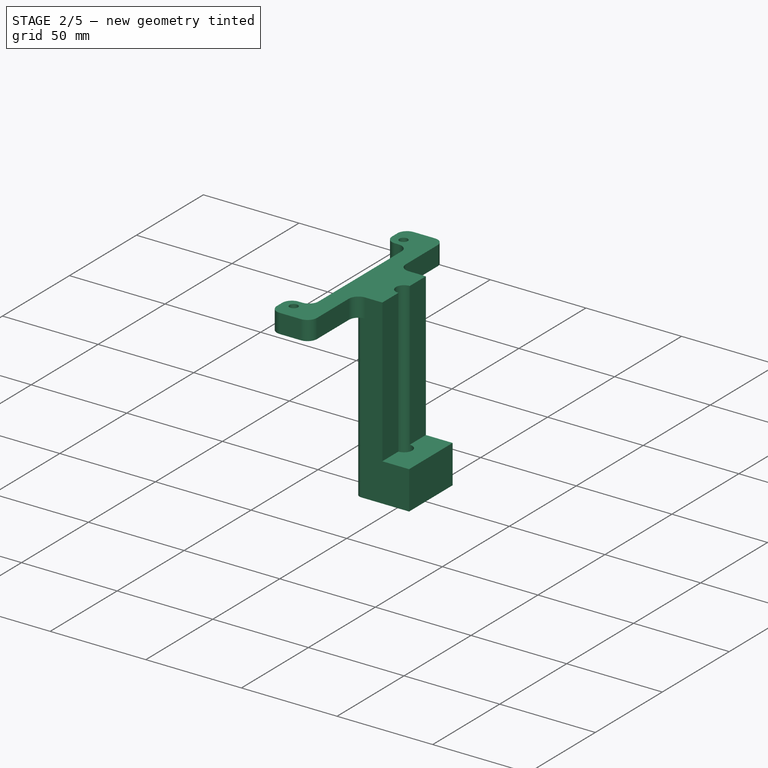
[diagram: stage 2 of 5 — iso view after this stage's code; geometry added in this stage tinted green]
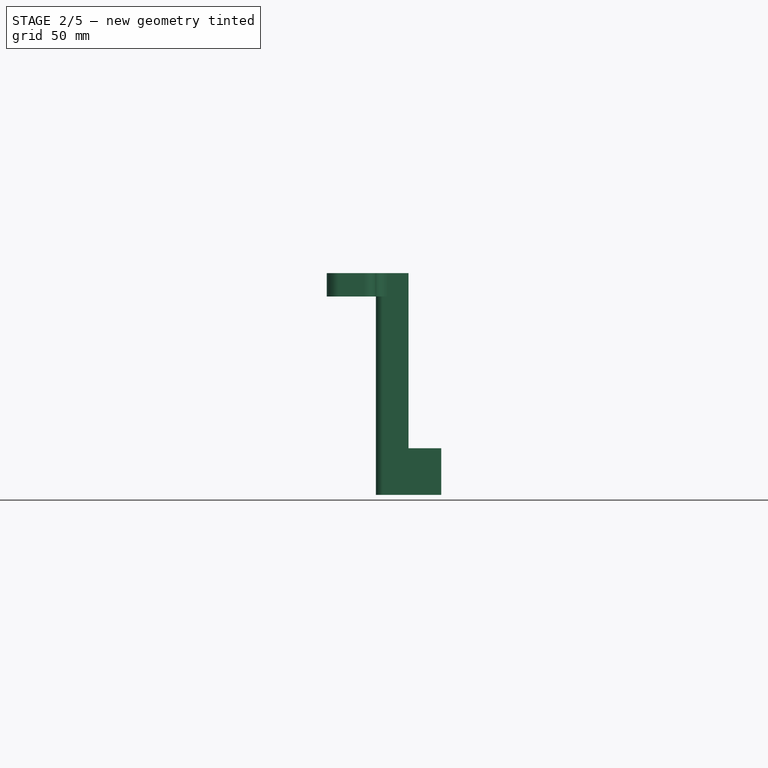
[diagram: stage 2 of 5 — front view after this stage's code; geometry added in this stage tinted green]
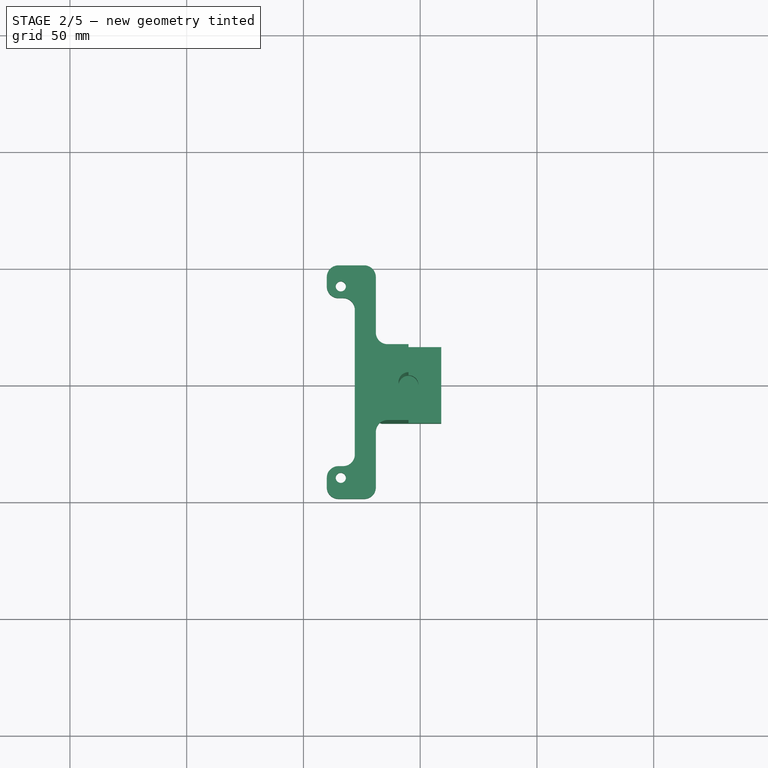
[diagram: stage 2 of 5 — top view after this stage's code; geometry added in this stage tinted green]
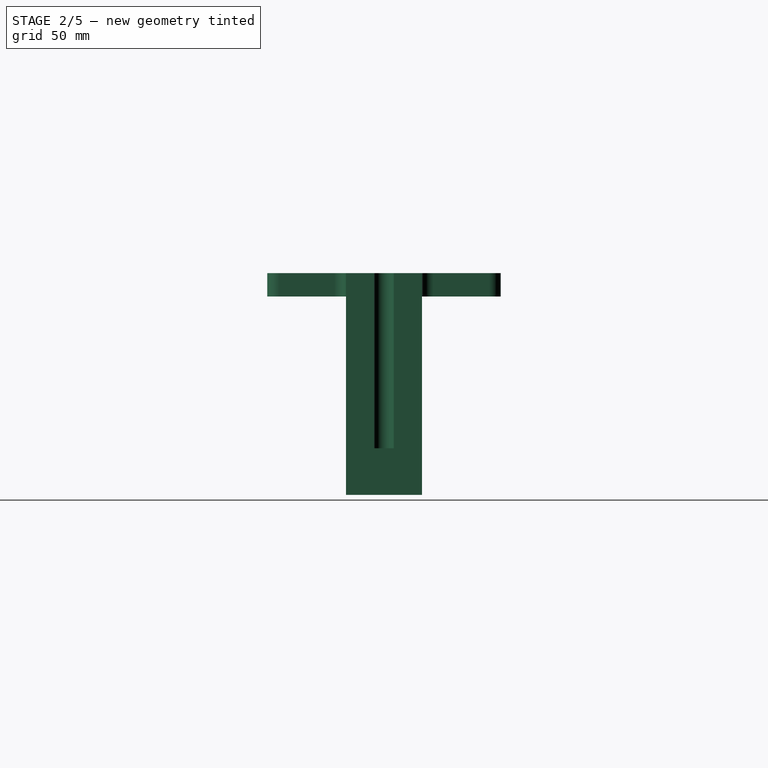
[diagram: stage 2 of 5 — right view after this stage's code; geometry added in this stage tinted green]
FEATURE [PartDesign::Fillet] Fillet
  Base = -> Pad017 [Edge43,Edge48]
  BaseFeature = -> Pad017
  Radius = 1.8
  Refine = true
  SupportTransform = false
  Suppressed = false
  UseAllEdges = false
FEATURE [PartDesign::Fillet] Fillet001
  Base = -> Fillet [Edge42,Edge48]
  BaseFeature = -> Fillet
  Radius = 3
  Refine = true
  SupportTransform = false
  Suppressed = false
  UseAllEdges = false
FEATURE [Sketcher::SketchObject] Sketch025
  ArcFitTolerance = 1e-06
  AttachmentSupport = -> [Fillet001]
  ExternalGeometry = -> [Fillet001]
  ExternalTypes = [0]
  FullyConstrained = true
  MakeInternals = false
  MapMode = 5
  Placement = pos=(0,0,35) rot=(1,0,0;3.14159rad)
  sketch-geometry (1):
    g0: Circle CenterX=41 CenterY=-38 CenterZ=0 NormalX=0 NormalY=0 NormalZ=1 AngleXU=0 Radius=6
  constraints (2):
    c: Diameter(g0) = 12
    c: Coincident(g0,g-3)
FEATURE [PartDesign::Pocket] Pocket008
  BaseFeature = -> Fillet001
  Direction = (0,0,1)
  Length = 0
  Length2 = 5
  Offset = 2
  Profile = -> Sketch025
  ReferenceAxis = -> Sketch025 [N_Axis]
  Refine = true
  Suppressed = false
  Type = 3
  UpToFace = -> Fillet001 [Face1]
FEATURE [PartDesign::Body] Body003  label="Body Top"
  AllowCompound = true
  Group = -> [Binder002,Sketch010,Pad005,Sketch024,Pad017,Fillet,Fillet001,Sketch025,Pocket008]
  Origin = -> Origin006
  Tip = -> Pocket008
FEATURE [App::Point] Origin017
  Role = Origin
FEATURE [PartDesign::SubShapeBinder] Binder006
  BindCopyOnChange = 0
  BindMode = 0
  ClaimChildren = false
  Context = -> Body008 [Binder006.]
  Fuse = false
  MakeFace = true
  OffsetFill = false
  OffsetIntersection = false
  OffsetJoinType = 0
  OffsetOpenResult = false
  PartialLoad = false
  Refine = true
  Relative = true
  Support = -> [Body003]
  _Version = 2
FEATURE [Sketcher::SketchObject] Sketch026
  ArcFitTolerance = 1e-06
  AttachmentSupport = -> [Binder006]
  ExternalGeometry = -> [Binder006]
  ExternalTypes = [0,0,0,0]
  FullyConstrained = true
  MakeInternals = true
  MapMode = 5
  Placement = pos=(0,0,40) rot=(0,0,1;0rad)
  sketch-geometry (22):
    g0: LineSegment StartX=75 StartY=50 StartZ=0 EndX=60 EndY=50 EndZ=0
    g1: LineSegment StartX=60 StartY=50 StartZ=0 EndX=60 EndY=36 EndZ=0
    g2: LineSegment StartX=60 StartY=36 StartZ=0 EndX=72 EndY=36 EndZ=0
    g3: LineSegment StartX=72 StartY=36 StartZ=0 EndX=72 EndY=-36 EndZ=0
    g4: LineSegment StartX=72 StartY=-36 StartZ=0 EndX=60 EndY=-36 EndZ=0
    g5: LineSegment StartX=60 StartY=-36 StartZ=0 EndX=60 EndY=-50 EndZ=0
    g6: LineSegment StartX=60 StartY=-50 StartZ=0 EndX=75 EndY=-50 EndZ=0
    g7: LineSegment StartX=75 StartY=-50 StartZ=0 EndX=81 EndY=-50 EndZ=0
    g8: LineSegment StartX=81 StartY=-50 StartZ=0 EndX=81 EndY=-16.25 EndZ=0
    g9: LineSegment StartX=75 StartY=50 StartZ=0 EndX=81 EndY=50 EndZ=0
    g10: LineSegment StartX=81 StartY=50 StartZ=0 EndX=81 EndY=16.25 EndZ=0
    g11: ArcOfCircle CenterX=95 CenterY=0 CenterZ=0 NormalX=0 NormalY=0 NormalZ=1 AngleXU=0 Radius=4.25 StartAngle=1.5708 EndAngle=4.71239
    g12: GeomPoint X=81 Y=0 Z=0
    g13: LineSegment StartX=81 StartY=-16.25 StartZ=0 EndX=95 EndY=-16.25 EndZ=0
    g14: LineSegment StartX=81 StartY=16.25 StartZ=0 EndX=95 EndY=16.25 EndZ=0
    g15: LineSegment [constr] StartX=66 StartY=36 StartZ=0 EndX=66 EndY=41 EndZ=0
    g16: LineSegment [constr] StartX=66 StartY=-41 StartZ=0 EndX=66 EndY=-36 EndZ=0
    g17: LineSegment StartX=95 StartY=-16.25 StartZ=0 EndX=95 EndY=-4.25 EndZ=0
    g18: LineSegment StartX=95 StartY=4.25 StartZ=0 EndX=95 EndY=16.25 EndZ=0
    g19: LineSegment [constr] StartX=96 StartY=-8.25 StartZ=0 EndX=96 EndY=-12.25 EndZ=0
    g20: GeomPoint [constr] X=96 Y=-10.25 Z=0
    g21: GeomPoint [constr] X=95 Y=-10.25 Z=0
  constraints (60):
    c: Coincident(g-5,g0)
    c: Horizontal(g0)
    c: Coincident(g0,g1)
    c: Vertical(g1)
    c: Coincident(g1,g2)
    c: Horizontal(g2)
    c: Coincident(g2,g3)
    c: Vertical(g3)
    c: Coincident(g3,g4)
    c: Horizontal(g4)
    c: Coincident(g4,g5)
    c: Vertical(g5)
    c: Coincident(g5,g6)
    c: Coincident(g6,g-5)
    c: Horizontal(g6)
    c: Vertical(g4,g1)
    c: Distance(g-4,g1) = 6
    c: Coincident(g6,g7)
    c: Horizontal(g7)
    c: Coincident(g7,g8)
    c: Vertical(g8)
    c: Coincident(g0,g9)
    c: Horizontal(g9)
    c: Coincident(g9,g10)
    c: Vertical(g10)
    c: Vertical(g10,g8)
    c: Symmetric(g10,g8,g12)
    c: PointOnObject(g12,g-1)
    c: PointOnObject(g11,g-1)
    c: Coincident(g13,g8)
    c: Coincident(g14,g10)
    c: Horizontal(g13)
    c: Distance(g-5,g8) = 6
    c: Distance(g-4,g2) = 5
    c: PointOnObject(g15,g2)
    c: Coincident(g15,g-4)
    c: Vertical(g15)
    c: Coincident(g16,g-3)
    c: PointOnObject(g16,g4)
    c: Vertical(g16)
    c: Equal(g16,g15)
    c: DistanceX(g16,g3) = 6
    c: Vertical(g11,g13)
    c: Diameter(g11) = 8.5
    c: Horizontal(g14)
    c: Coincident(g17,g13)
    c: Coincident(g17,g11)
    c: Coincident(g18,g11)
    c: Coincident(g18,g14)
    c: Vertical(g18)
    c: Vertical(g11,g11)
    c: Vertical(g11,g11)
    c: Distance(g19) = 4
    c: Vertical(g19)
    c: Symmetric(g19,g19,g20)
    c: Symmetric(g17,g17,g21)
    c: Horizontal(g21,g20)
    c: DistanceX(g21,g20) = 1
    c: DistanceY(g19,g11) = 4
    c: Distance(g19,g-5) = 21
FEATURE [PartDesign::Pad] Pad018
  Direction = (0,0,1)
  Length = 10
  Length2 = 10
  Profile = -> Sketch026
  ReferenceAxis = -> Sketch026 [N_Axis]
  Refine = true
  Suppressed = false
  Type = 0
FEATURE [Sketcher::SketchObject] Sketch027
  ArcFitTolerance = 1e-06
  AttachmentSupport = -> [Pad018]
  ExternalGeometry = -> [Pad018]
  ExternalTypes = [0,0,0,0,0]
  FullyConstrained = true
  MakeInternals = true
  MapMode = 5
  Placement = pos=(0,0,40) rot=(1,0,0;3.14159rad)
  sketch-geometry (1):
    g0: LineSegment StartX=81 StartY=-16.25 StartZ=0 EndX=81 EndY=16.25 EndZ=0
  constraints (2):
    c: Coincident(g0,g-7)
    c: Coincident(g0,g-3)
FEATURE [PartDesign::Pad] Pad019
  BaseFeature = -> Pad018
  Direction = (0,0,-1)
  Length = 85
  Length2 = 10
  Profile = -> Sketch027
  ReferenceAxis = -> Sketch027 [N_Axis]
  Refine = true
  Suppressed = false
  Type = 0
FEATURE [PartDesign::Fillet] Fillet002
  Base = -> Pad019 [Edge33,Edge30,Edge28,Edge26,Edge24,Edge22,Edge21,Edge17,Edge18,Edge34]
  BaseFeature = -> Pad019
  Radius = 5
  Refine = true
  SupportTransform = false
  Suppressed = false
  UseAllEdges = false
FEATURE [PartDesign::Fillet] Fillet003
  Base = -> Fillet002 [Edge31,Edge49]
  BaseFeature = -> Fillet002
  Radius = 3
  Refine = true
  SupportTransform = false
  Suppressed = false
  UseAllEdges = false
  expr: Radius = Fillet002.Radius - 2 mm
FEATURE [Sketcher::SketchObject] Sketch028
  ArcFitTolerance = 1e-06
  AttachmentSupport = -> [Pad019]
  ExternalGeometry = -> [Fillet003]
  ExternalTypes = [0,0,0,0,0]
  FullyConstrained = true
  MakeInternals = true
  MapMode = 5
  Placement = pos=(0,0,-45) rot=(1,0,0;3.14159rad)
  sketch-geometry (4):
    g0: LineSegment StartX=95 StartY=16.25 StartZ=0 EndX=109 EndY=16.25 EndZ=0
    g1: LineSegment StartX=109 StartY=16.25 StartZ=0 EndX=109 EndY=-16.25 EndZ=0
    g2: LineSegment StartX=109 StartY=-16.25 StartZ=0 EndX=95 EndY=-16.25 EndZ=0
    g3: LineSegment [constr] StartX=95 StartY=16.25 StartZ=0 EndX=81 EndY=16.25 EndZ=0
  constraints (11):
    c: Horizontal(g0)
    c: Coincident(g1,g0)
    c: Vertical(g1)
    c: Coincident(g2,g1)
    c: Horizontal(g2)
    c: Coincident(g-7,g2)
    c: Coincident(g-3,g0)
    c: Coincident(g3,g0)
    c: Horizontal(g3)
    c: Vertical(g3,g-5)
    c: Equal(g3,g0)
FEATURE [PartDesign::Pad] Pad020
  BaseFeature = -> Fillet003
  Direction = (0,0,-1)
  Length = 5
  Length2 = 10
  Profile = -> Sketch028
  ReferenceAxis = -> Sketch028 [N_Axis]
  Refine = true
  Reversed = true
  Suppressed = false
  Type = 0
FEATURE [Sketcher::SketchObject] Sketch029
  ArcFitTolerance = 1e-06
  AttachmentSupport = -> [Pad020]
  ExternalGeometry = -> [Pad020]
  ExternalTypes = [0,0,0,0,0,0]
  FullyConstrained = true
  MakeInternals = true
  MapMode = 5
  Placement = pos=(0,0,-40) rot=(0,0,1;0rad)
  sketch-geometry (1):
    g0: ArcOfCircle CenterX=95 CenterY=4e-16 CenterZ=0 NormalX=0 NormalY=0 NormalZ=1 AngleXU=0 Radius=4.25 StartAngle=4.71239 EndAngle=7.85399
  constraints (3):
    c: Coincident(g0,g-3)
    c: Coincident(g0,g-3)
    c: Equal(g0,g-3)
FEATURE [PartDesign::Pad] Pad021
  BaseFeature = -> Pad020
  Direction = (0,0,1)
  Length = 15
  Length2 = 10
  Profile = -> Sketch029
  ReferenceAxis = -> Sketch029 [N_Axis]
  Refine = true
  Suppressed = false
  Type = 0
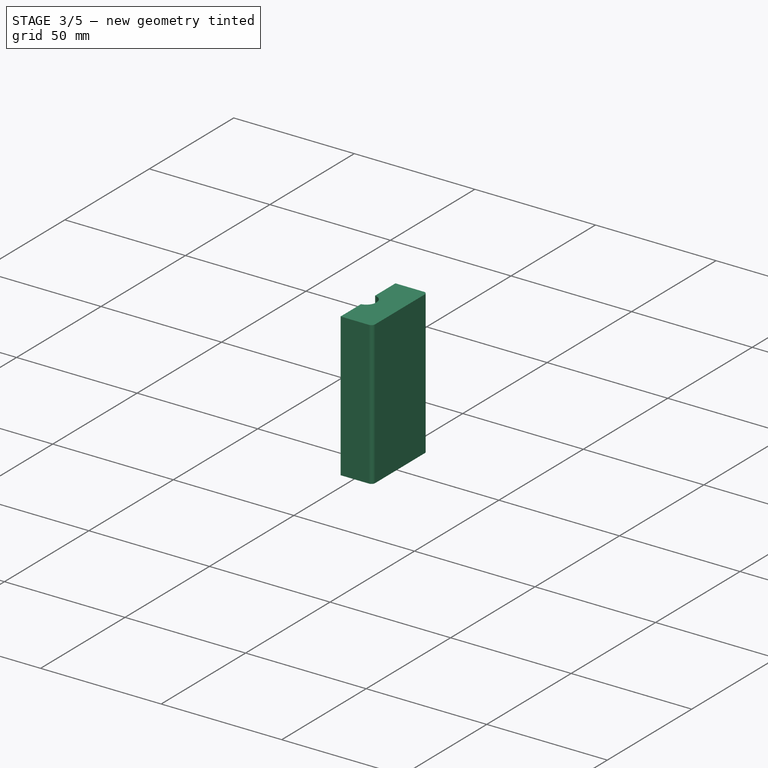
[diagram: stage 3 of 5 — iso view after this stage's code; geometry added in this stage tinted green]
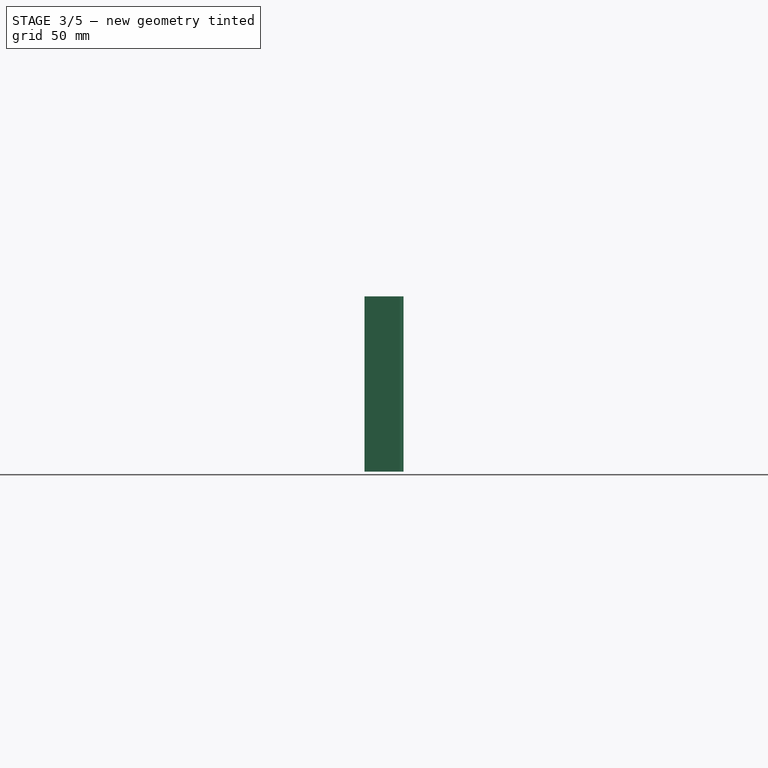
[diagram: stage 3 of 5 — front view after this stage's code; geometry added in this stage tinted green]
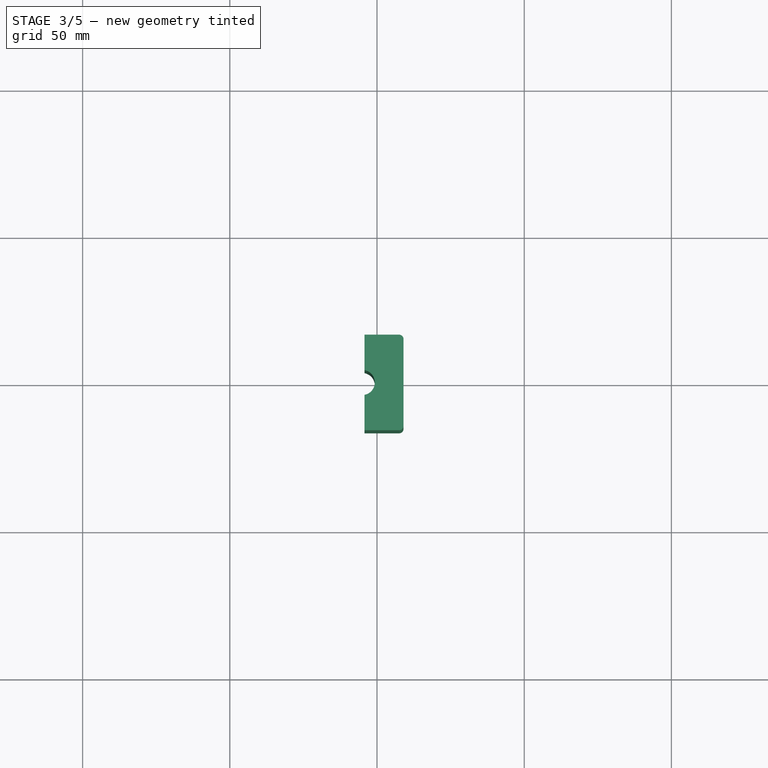
[diagram: stage 3 of 5 — top view after this stage's code; geometry added in this stage tinted green]
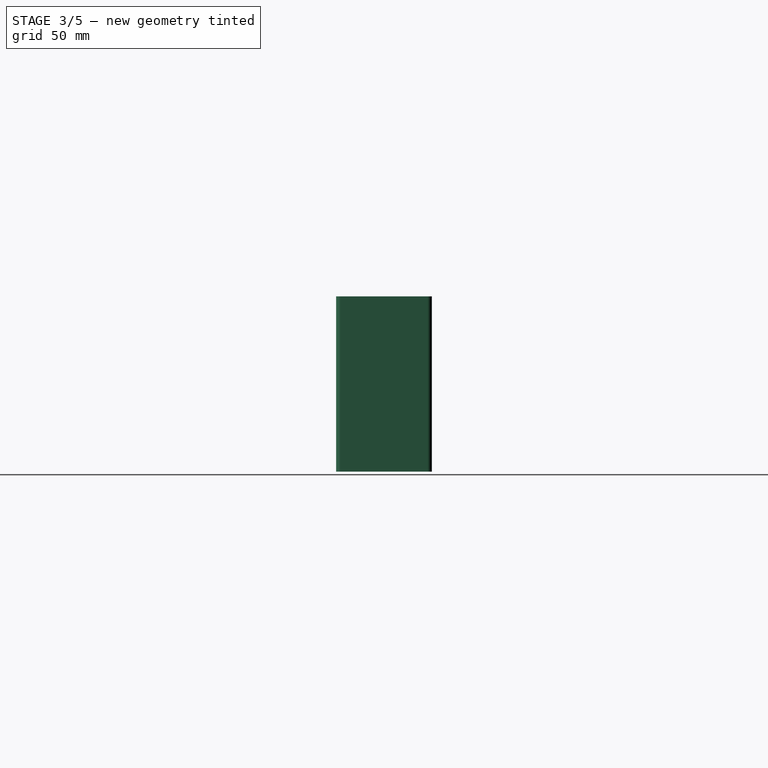
[diagram: stage 3 of 5 — right view after this stage's code; geometry added in this stage tinted green]
FEATURE [Sketcher::SketchObject] Sketch034
  ArcFitTolerance = 1e-06
  AttachmentSupport = -> [Pad021]
  ExternalGeometry = -> [Pad021]
  ExternalTypes = [0,0,0,0,0,0]
  FullyConstrained = true
  MakeInternals = true
  MapMode = 5
  Placement = pos=(0,0,50) rot=(0,0,1;0rad)
  sketch-geometry (1):
    g0: ArcOfCircle CenterX=95 CenterY=3e-16 CenterZ=0 NormalX=0 NormalY=0 NormalZ=1 AngleXU=0 Radius=4.25 StartAngle=4.71239 EndAngle=7.85398
  constraints (3):
    c: Coincident(g0,g-5)
    c: Coincident(g-5,g0)
    c: Equal(g0,g-5)
FEATURE [PartDesign::Pad] Pad023
  BaseFeature = -> Pad021
  Direction = (0,0,1)
  Length = 15
  Length2 = 10
  Profile = -> Sketch034
  ReferenceAxis = -> Sketch034 [N_Axis]
  Refine = true
  Reversed = true
  Suppressed = false
  Type = 0
  expr: Length = Pad021.Length
FEATURE [App::Point] Origin019
  Role = Origin
FEATURE [PartDesign::SubShapeBinder] Binder007
  BindCopyOnChange = 0
  BindMode = 0
  ClaimChildren = false
  Context = -> Body009 [Binder007.]
  Fuse = false
  MakeFace = true
  OffsetFill = false
  OffsetIntersection = false
  OffsetJoinType = 0
  OffsetOpenResult = false
  PartialLoad = false
  Refine = true
  Relative = true
  Support = -> [Body008]
  _Version = 2
FEATURE [Sketcher::SketchObject] Sketch032
  ArcFitTolerance = 1e-06
  AttachmentOffset = pos=(0,0,0.25) rot=(0,0,1;0rad)
  AttachmentSupport = -> [Binder007]
  ExternalGeometry = -> [Binder007]
  ExternalTypes = [0,0,0,0,0,0]
  FullyConstrained = true
  MakeInternals = true
  MapMode = 5
  Placement = pos=(6.88e-14,2.03e-14,34.75) rot=(1,0,0;3.14159rad)
  expr: Constraints[13] = Sketch035.Constraints.ClampOffset * 2
  sketch-geometry (5):
    g0: LineSegment StartX=107.5 StartY=16.25 StartZ=0 EndX=95.75 EndY=16.25 EndZ=0
    g1: LineSegment StartX=95.75 StartY=16.25 StartZ=0 EndX=95.75 EndY=4.1833 EndZ=0
    g2: ArcOfCircle CenterX=95 CenterY=2e-16 CenterZ=0 NormalX=0 NormalY=0 NormalZ=1 AngleXU=0 Radius=4.25 StartAngle=4.88978 EndAngle=7.67659
    g3: LineSegment StartX=95.75 StartY=-4.1833 StartZ=0 EndX=95.75 EndY=-16.25 EndZ=0
    g4: LineSegment StartX=95.75 StartY=-16.25 StartZ=0 EndX=107.5 EndY=-16.25 EndZ=0
  constraints (16):
    c: Coincident(g0,g1)
    c: PointOnObject(g2,g-3)
    c: PointOnObject(g2,g-3)
    c: Equal(g-3,g2)
    c: Vertical(g1)
    c: Vertical(g3)
    c: PointOnObject(g2,g1)
    c: Coincident(g2,g3)
    c: PointOnObject(g1,g-3)
    c: Vertical(g1,g2)
    c: Horizontal(g0)
    c: Coincident(g4,g3)
    c: Horizontal(g4)
    c: Distance(g3,g-6) = 1.5
    c: Coincident(g-8,g4)
    c: Coincident(g-7,g0)
FEATURE [PartDesign::Pad] Pad022
  Direction = (-2e-15,0,-1)
  Length = 10
  Length2 = 10
  Offset = -0.25
  Profile = -> Sketch032
  ReferenceAxis = -> Sketch032 [N_Axis]
  Refine = true
  Suppressed = false
  Type = 3
  UpToFace = -> Binder007 [Face6]
  expr: Offset = -Sketch032.AttachmentOffset.Base.z
FEATURE [Sketcher::SketchObject] Sketch035
  ArcFitTolerance = 1e-06
  AttachmentSupport = -> [Pad023]
  ExternalGeometry = -> [Pad023]
  ExternalTypes = [0,0]
  FullyConstrained = true
  MakeInternals = true
  MapMode = 5
  Placement = pos=(1.27e-14,0,35) rot=(1,0,0;3.14159rad)
  sketch-geometry (4):
    g0: LineSegment StartX=95 StartY=16.25 StartZ=0 EndX=94.25 EndY=16.25 EndZ=0
    g1: LineSegment StartX=94.25 StartY=16.25 StartZ=0 EndX=94.25 EndY=-16.25 EndZ=0
    g2: LineSegment StartX=94.25 StartY=-16.25 StartZ=0 EndX=95 EndY=-16.25 EndZ=0
    g3: LineSegment StartX=95 StartY=-16.25 StartZ=0 EndX=95 EndY=4.25 EndZ=0
  constraints (11):
    c: Coincident(g-3,g0)
    c: Horizontal(g0)
    c: Coincident(g0,g1)
    c: Vertical(g1)
    c: Coincident(g1,g2)
    c: Coincident(g2,g3)
    c: Coincident(g3,g-3)
    c: Vertical(g3)
    c: Horizontal(g2)
    c: PointOnObject(g1,g-4)
    c: DistanceX(g2,g2) = 0.75  'ClampOffset'
FEATURE [PartDesign::Pocket] Pocket012
  BaseFeature = -> Pad023
  Direction = (0,0,1)
  Length = 0
  Length2 = 5
  Profile = -> Sketch035
  ReferenceAxis = -> Sketch035 [N_Axis]
  Refine = true
  Suppressed = false
  Type = 3
  UpToFace = -> Pad023 [Face2]
FEATURE [Sketcher::SketchObject] Sketch031
  ArcFitTolerance = 1e-06
  AttachmentSupport = -> [Pad023]
  ExternalGeometry = -> [Pad021,Pocket012]
  ExternalTypes = [0,0,0]
  FullyConstrained = true
  MakeInternals = true
  MapMode = 5
  Placement = pos=(1.27e-14,0,35) rot=(1,0,0;3.14159rad)
  sketch-geometry (6):
    g0: ArcOfCircle CenterX=93.25 CenterY=15.25 CenterZ=0 NormalX=0 NormalY=0 NormalZ=1 AngleXU=0 Radius=1 StartAngle=2e-16 EndAngle=1.5708
    g1: LineSegment StartX=93.25 StartY=16.25 StartZ=0 EndX=94.25 EndY=16.25 EndZ=0
    g2: LineSegment StartX=94.25 StartY=16.25 StartZ=0 EndX=94.25 EndY=15.25 EndZ=0
    g3: ArcOfCircle CenterX=93.25 CenterY=4.94975 CenterZ=0 NormalX=0 NormalY=0 NormalZ=1 AngleXU=0 Radius=1 StartAngle=5.05223 EndAngle=6.28319
    g4: ArcOfCircle CenterX=95 CenterY=-3.227e-13 CenterZ=0 NormalX=0 NormalY=0 NormalZ=1 AngleXU=0 Radius=4.25 StartAngle=1.7482 EndAngle=1.91063
    g5: LineSegment StartX=94.25 StartY=4.1833 StartZ=0 EndX=94.25 EndY=4.94975 EndZ=0
  constraints (15):
    c: Tangent(g0,g-3) = 1.5708
    c: Coincident(g1,g0)
    c: Tangent(g2,g0) = 1.5708
    c: Radius(g0) = 1
    c: Tangent(g3,g-4) = 1.5708
    c: Coincident(g4,g3)
    c: Equal(g-4,g4)
    c: Tangent(g5,g3) = -1.5708
    c: Equal(g0,g3)
    c: Coincident(g5,g4)
    c: Coincident(g1,g2)
    c: Coincident(g-5,g4)
    c: PointOnObject(g3,g-5)
    c: Coincident(g1,g-5)
    c: PointOnObject(g0,g-5)
FEATURE [PartDesign::Pocket] Pocket010
  BaseFeature = -> Pocket012
  Direction = (0,0,1)
  Length = 0
  Length2 = 5
  Profile = -> Sketch031
  ReferenceAxis = -> Sketch031 [N_Axis]
  Refine = true
  Suppressed = false
  Type = 3
  UpToFace = -> Pad021 [Face6]
FEATURE [PartDesign::Mirrored] Mirrored002
  BaseFeature = -> Pocket010
  MirrorPlane = -> Sketch031 [H_Axis]
  Originals = -> [Pocket010]
  Refine = true
  Suppressed = false
  TransformMode = 0
FEATURE [PartDesign::Fillet] Fillet004
  Base = -> Mirrored002 [Edge3,Edge18,Edge23,Edge7]
  BaseFeature = -> Mirrored002
  Radius = 1.5
  Refine = true
  SupportTransform = false
  Suppressed = false
  UseAllEdges = false
FEATURE [PartDesign::Chamfer] Chamfer
  Angle = 45
  Base = -> Fillet004 [Face2]
  BaseFeature = -> Fillet004
  ChamferType = 0
  FlipDirection = false
  Refine = true
  Size = 1
  Size2 = 1
  SupportTransform = false
  Suppressed = false
  UseAllEdges = false
FEATURE [Sketcher::SketchObject] Sketch030
  ArcFitTolerance = 1e-06
  AttachmentSupport = -> [Chamfer]
  ExternalGeometry = -> [Chamfer]
  ExternalTypes = [0,0]
  FullyConstrained = true
  MakeInternals = true
  MapMode = 5
  Placement = pos=(94.25,0,0) rot=(0.57735,0.57735,0.57735;2.0944rad)
  sketch-geometry (6):
    g0: LineSegment [constr] StartX=-10.0999 StartY=28.2 StartZ=0 EndX=-10.0999 EndY=-18.2 EndZ=0
    g1: Circle CenterX=-10.0999 CenterY=-18.2 CenterZ=0 NormalX=0 NormalY=0 NormalZ=1 AngleXU=0 Radius=1.8
    g2: Circle CenterX=-10.0999 CenterY=5 CenterZ=0 NormalX=0 NormalY=0 NormalZ=1 AngleXU=0 Radius=1.8
    g3: Circle CenterX=-10.0999 CenterY=28.2 CenterZ=0 NormalX=0 NormalY=0 NormalZ=1 AngleXU=0 Radius=1.8
    g4: GeomPoint X=-10.0999 Y=-25 Z=0
    g5: GeomPoint X=-10.0999 Y=35 Z=0
  constraints (11):
    c: Vertical(g0)
    c: Diameter(g1) = 3.6
    c: Coincident(g1,g0)
    c: Symmetric(g0,g0,g2)
    c: Coincident(g3,g0)
    c: Equal(g3,g2)
    c: Equal(g2,g1)
    c: Symmetric(g4,g5,g2)
    c: Distance(g5,g3) = 5
    c: Symmetric(g-3,g-3,g4)
    c: Symmetric(g-4,g-4,g5)
FEATURE [PartDesign::Pocket] Pocket009
  BaseFeature = -> Chamfer
  Direction = (-1,0,0)
  Length = 0
  Length2 = 5
  Profile = -> Sketch030
  ReferenceAxis = -> Sketch030 [N_Axis]
  Refine = true
  Suppressed = false
  Type = 3
  UpToFace = -> Chamfer [Face25]
FEATURE [Part::DatumPlane] DatumPlane001
  AttachmentSupport = -> [Pocket009]
  MapMode = 45
  Placement = pos=(109,0,-25) rot=(0,0.707107,0.707107;3.14159rad)
FEATURE [PartDesign::Chamfer] Chamfer001
  Angle = 45
  Base = -> Pocket009 [Edge125,Edge124,Edge123]
  BaseFeature = -> Pocket009
  ChamferType = 0
  FlipDirection = false
  Refine = true
  Size = 0.5
  Size2 = 1
  SupportTransform = false
  Suppressed = false
  UseAllEdges = false
FEATURE [PartDesign::Mirrored] Mirrored001
  BaseFeature = -> Chamfer001
  MirrorPlane = -> DatumPlane001
  Originals = -> [Pocket009,Chamfer001]
  Refine = true
  Suppressed = false
  TransformMode = 0
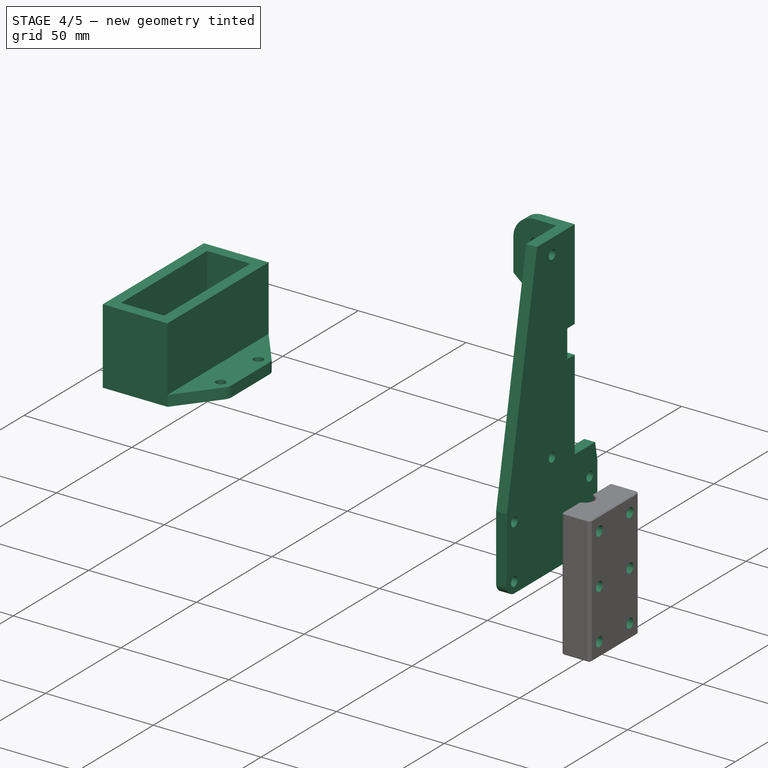
[diagram: stage 4 of 5 — iso view after this stage's code; geometry added in this stage tinted green]
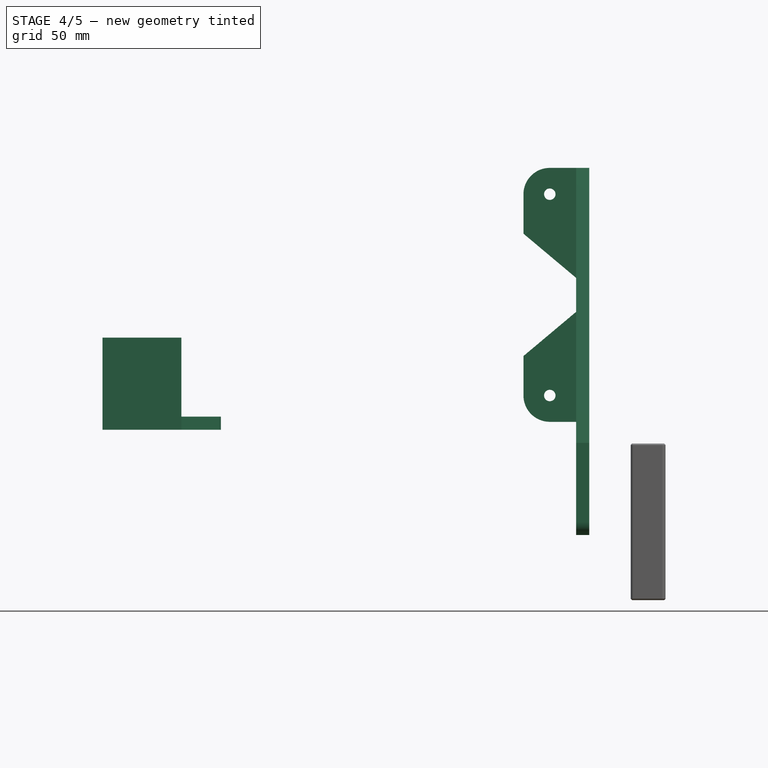
[diagram: stage 4 of 5 — front view after this stage's code; geometry added in this stage tinted green]
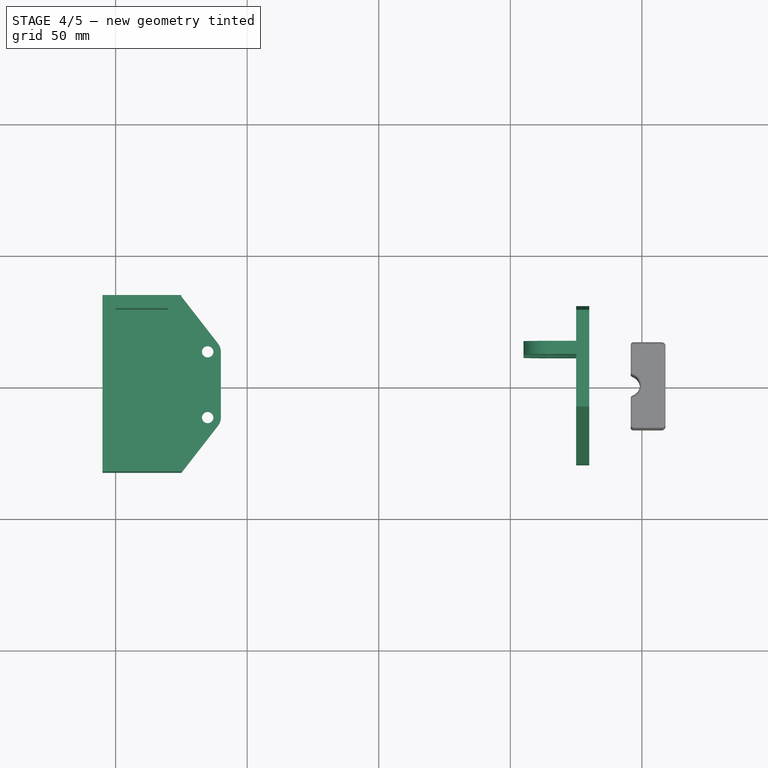
[diagram: stage 4 of 5 — top view after this stage's code; geometry added in this stage tinted green]
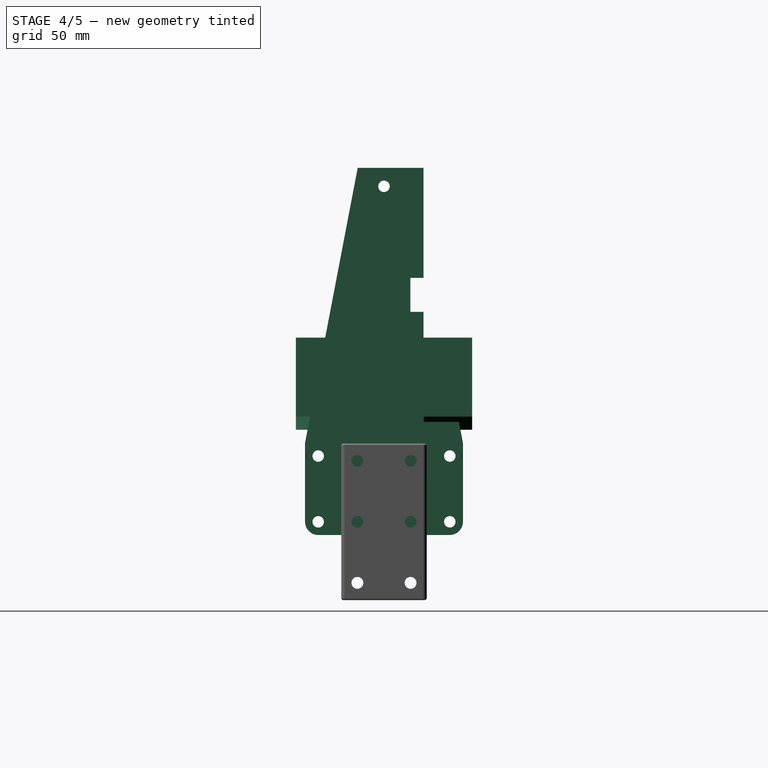
[diagram: stage 4 of 5 — right view after this stage's code; geometry added in this stage tinted green]
FEATURE [App::Point] Origin005
  Role = Origin
FEATURE [PartDesign::SubShapeBinder] Binder001
  BindCopyOnChange = 0
  BindMode = 0
  ClaimChildren = false
  Context = -> Body002 [Binder001.]
  Fuse = false
  MakeFace = true
  OffsetFill = false
  OffsetIntersection = false
  OffsetJoinType = 0
  OffsetOpenResult = false
  PartialLoad = false
  Refine = true
  Relative = true
  Support = -> [Body]
  _Version = 2
FEATURE [Sketcher::SketchObject] Sketch005
  ArcFitTolerance = 1e-06
  AttachmentSupport = -> [Binder001]
  ExternalGeometry = -> [Binder001]
  ExternalTypes = [0,0,0,0,0]
  FullyConstrained = true
  MakeInternals = false
  MapMode = 5
  Placement = pos=(75,0,0) rot=(0.57735,0.57735,0.57735;2.0944rad)
  expr: Constraints[20] = Variables#Spreadsheet.SlidesMountOffset
  sketch-geometry (21):
    g0: LineSegment StartX=-30 StartY=35 StartZ=0 EndX=-30 EndY=-4.26e-14 EndZ=0
    g1: LineSegment StartX=-30 StartY=-4.26e-14 StartZ=0 EndX=30 EndY=-4.26e-14 EndZ=0
    g2: LineSegment StartX=30 StartY=-4.26e-14 StartZ=0 EndX=30 EndY=35 EndZ=0
    g3: LineSegment [constr] StartX=25 StartY=-4.32e-14 StartZ=0 EndX=30 EndY=-4.32e-14 EndZ=0
    g4: LineSegment [constr] StartX=30 StartY=-4.32e-14 StartZ=0 EndX=30 EndY=5 EndZ=0
    g5: LineSegment [constr] StartX=30 StartY=5 StartZ=0 EndX=25 EndY=5 EndZ=0
    g6: LineSegment StartX=10 StartY=139.5 StartZ=0 EndX=-10 EndY=139.5 EndZ=0
    g7: LineSegment StartX=-10 StartY=139.5 StartZ=0 EndX=-30 EndY=35 EndZ=0
    g8: GeomPoint X=-1.13e-14 Y=35 Z=0
    g9: LineSegment [constr] StartX=-5.73e-14 StartY=132.5 StartZ=0 EndX=-5.73e-14 EndY=-37.5 EndZ=0
    g10: Circle CenterX=-5.73e-14 CenterY=132.5 CenterZ=0 NormalX=0 NormalY=0 NormalZ=1 AngleXU=0 Radius=2.175
    g11: Circle CenterX=-5.9e-14 CenterY=47.5 CenterZ=0 NormalX=0 NormalY=0 NormalZ=1 AngleXU=0 Radius=2.175
    g12: GeomPoint X=-6.21e-14 Y=17.5 Z=0
    g13: LineSegment [constr] StartX=25 StartY=-4.32e-14 StartZ=0 EndX=25 EndY=5 EndZ=0
    g14: GeomPoint X=-1.5e-15 Y=139.5 Z=0
    g15: GeomPoint X=-1.144e-13 Y=-4.73e-14 Z=0
    g16: LineSegment StartX=10 StartY=139.5 StartZ=0 EndX=10 EndY=43 EndZ=0
    g17: LineSegment StartX=10 StartY=43 StartZ=0 EndX=28.4689 EndY=43 EndZ=0
    g18: LineSegment StartX=28.4689 StartY=43 StartZ=0 EndX=30 EndY=35 EndZ=0
    g19: LineSegment [constr] StartX=28.4689 StartY=43 StartZ=0 EndX=-28.4689 EndY=43 EndZ=0
    g20: GeomPoint [constr] X=-4.29e-14 Y=43 Z=0
  constraints (51):
    c: Coincident(g0,g1)
    c: Vertical(g0)
    c: Vertical(g2)
    c: Coincident(g3,g4)
    c: Coincident(g4,g5)
    c: Vertical(g4)
    c: Horizontal(g3)
    c: Horizontal(g5)
    c: DistanceX(g5,g5) = 5
    c: PointOnObject(g0,g-5)
    c: Coincident(g6,g7)
    c: Horizontal(g6)
    c: Symmetric(g-5,g-5,g8)
    c: DistanceY(g9,g9) = 170
    c: Vertical(g9)
    c: Coincident(g10,g9)
    c: Symmetric(g9,g9,g11)
    c: Equal(g11,g10)
    c: PointOnObject(g8,g9)
    c: Distance(g9,g6) = 7
    c: DistanceY(g9,g12) = 55
    c: Coincident(g13,g3)
    c: Coincident(g13,g5)
    c: Vertical(g13)
    c: PointOnObject(g2,g-5)
    c: Symmetric(g6,g6,g14)
    c: PointOnObject(g14,g-2)
    c: Coincident(g7,g0)
    c: DistanceX(g6,g6) = 20
    c: Equal(g13,g5)
    c: Horizontal(g1)
    c: Coincident(g1,g2)
    c: PointOnObject(g4,g2)
    c: PointOnObject(g3,g1)
    c: Symmetric(g1,g1,g15)
    c: PointOnObject(g15,g9)
    c: Coincident(g5,g-7)
    c: Symmetric(g-6,g-4,g12)
    c: Equal(g11,g-3)
    c: Coincident(g16,g6)
    c: Vertical(g16)
    c: Horizontal(g17)
    c: Coincident(g17,g16)
    c: Coincident(g18,g17)
    c: Coincident(g18,g2)
    c: Symmetric(g19,g19,g20)
    c: PointOnObject(g20,g9)
    c: PointOnObject(g19,g7)
    c: Horizontal(g19)
    c: Coincident(g19,g17)
    c: Distance(g16,g-5) = 8
FEATURE [PartDesign::Pad] Pad003
  Direction = (1,0,0)
  Length = 5
  Length2 = 10
  Profile = -> Sketch005
  ReferenceAxis = -> Sketch005 [N_Axis]
  Refine = true
  Suppressed = false
  Type = 0
FEATURE [Sketcher::SketchObject] Sketch006
  ArcFitTolerance = 1e-06
  AttachmentSupport = -> [Pad003]
  ExternalGeometry = -> [Pad003]
  ExternalTypes = [0,0,0,0,0,0,0,0,0]
  FullyConstrained = true
  MakeInternals = false
  MapMode = 5
  Placement = pos=(80,0,0) rot=(0.57735,0.57735,0.57735;2.0944rad)
  sketch-geometry (12):
    g0: LineSegment StartX=-9.06753 StartY=144.372 StartZ=0 EndX=-10 EndY=139.5 EndZ=0
    g1: LineSegment StartX=-10 StartY=139.5 StartZ=0 EndX=-14.9606 EndY=139.5 EndZ=0
    g2: LineSegment StartX=22.1779 StartY=139.5 StartZ=0 EndX=30 EndY=35 EndZ=0
    g3: LineSegment StartX=30 StartY=35 StartZ=0 EndX=10.3016 EndY=137.924 EndZ=0
    g4: LineSegment StartX=-25 StartY=-4e-14 StartZ=0 EndX=-30 EndY=-3.24e-14 EndZ=0
    g5: LineSegment StartX=-30 StartY=-3.24e-14 StartZ=0 EndX=-30 EndY=5 EndZ=0
    g6: ArcOfCircle CenterX=-25 CenterY=5 CenterZ=0 NormalX=0 NormalY=0 NormalZ=1 AngleXU=0 Radius=5 StartAngle=3.14159 EndAngle=4.71239
    g7: LineSegment StartX=25 StartY=-4e-14 StartZ=0 EndX=30 EndY=-3.5e-14 EndZ=0
    g8: LineSegment StartX=30 StartY=-3.5e-14 StartZ=0 EndX=30 EndY=5 EndZ=0
    g9: ArcOfCircle CenterX=25 CenterY=5 CenterZ=0 NormalX=0 NormalY=0 NormalZ=1 AngleXU=0 Radius=5 StartAngle=4.71239 EndAngle=6.28319
    g10: ArcOfCircle CenterX=-14.9606 CenterY=145.5 CenterZ=0 NormalX=0 NormalY=0 NormalZ=1 AngleXU=0 Radius=6 StartAngle=4.71239 EndAngle=6.09408
    g11: ArcOfCircle CenterX=16.1946 CenterY=139.052 CenterZ=0 NormalX=0 NormalY=0 NormalZ=1 AngleXU=0 Radius=6 StartAngle=3.33069 EndAngle=6.3579
  constraints (28):
    c: PointOnObject(g0,g-3)
    c: Coincident(g0,g-4)
    c: Coincident(g0,g1)
    c: PointOnObject(g1,g-4)
    c: PointOnObject(g2,g-4)
    c: Coincident(g2,g-5)
    c: Coincident(g2,g3)
    c: PointOnObject(g3,g-5)
    c: Coincident(g4,g5)
    c: PointOnObject(g5,g-6)
    c: Tangent(g6,g4) = 1.5708
    c: Tangent(g6,g5) = 1.5708
    c: Radius(g6) = 5
    c: Coincident(g7,g-7)
    c: Coincident(g7,g8)
    c: PointOnObject(g8,g-7)
    c: Tangent(g9,g7) = -1.5708
    c: Tangent(g9,g8) = -1.5708
    c: Equal(g9,g6)
    c: PointOnObject(g4,g-1)
    c: Coincident(g-6,g4)
    c: PointOnObject(g7,g-1)
    c: Tangent(g10,g1) = 1.5708
    c: Tangent(g10,g0) = 1.5708
    c: Tangent(g11,g2) = 1.5708
    c: Tangent(g11,g3) = 1.5708
    c: Radius(g11) = 6
    c: Equal(g11,g10)
FEATURE [PartDesign::Pocket] Pocket004
  BaseFeature = -> Pad003
  Direction = (-1,0,0)
  Length = 0
  Length2 = 5
  Profile = -> Sketch006
  ReferenceAxis = -> Sketch006 [N_Axis]
  Refine = true
  Suppressed = false
  Type = 3
  UpToFace = -> Pad003 [Face15]
FEATURE [Sketcher::SketchObject] Sketch011
  ArcFitTolerance = 1e-06
  AttachmentSupport = -> [Pocket004]
  ExternalGeometry = -> [Pocket004]
  ExternalTypes = [0,0,0]
  FullyConstrained = true
  MakeInternals = false
  MapMode = 5
  Placement = pos=(0,10,0) rot=(0,0.707107,0.707107;3.14159rad)
  expr: Constraints[7] = Variables#Spreadsheet.M4ThroughBoreDiam
  sketch-geometry (15):
    g0: LineSegment StartX=-80 StartY=139.5 StartZ=0 EndX=-80 EndY=114.5 EndZ=0
    g1: ArcOfCircle CenterX=-65 CenterY=129.5 CenterZ=0 NormalX=0 NormalY=0 NormalZ=1 AngleXU=0 Radius=10 StartAngle=0 EndAngle=1.5708
    g2: LineSegment StartX=-65 StartY=139.5 StartZ=0 EndX=-80 EndY=139.5 EndZ=0
    g3: Circle CenterX=-65 CenterY=129.5 CenterZ=0 NormalX=0 NormalY=0 NormalZ=1 AngleXU=0 Radius=2.175
    g4: LineSegment StartX=-55 StartY=129.5 StartZ=0 EndX=-55 EndY=114.5 EndZ=0
    g5: LineSegment StartX=-55 StartY=114.5 StartZ=0 EndX=-75 EndY=97.718 EndZ=0
    g6: LineSegment StartX=-75 StartY=97.718 StartZ=0 EndX=-80 EndY=97.718 EndZ=0
    g7: LineSegment StartX=-80 StartY=97.718 StartZ=0 EndX=-80 EndY=114.5 EndZ=0
    g8: LineSegment StartX=-80 StartY=43 StartZ=0 EndX=-65 EndY=43 EndZ=0
    g9: ArcOfCircle CenterX=-65 CenterY=53 CenterZ=0 NormalX=0 NormalY=0 NormalZ=1 AngleXU=0 Radius=10 StartAngle=4.71239 EndAngle=6.28319
    g10: LineSegment StartX=-55 StartY=53 StartZ=0 EndX=-55 EndY=68 EndZ=0
    g11: LineSegment StartX=-55 StartY=68 StartZ=0 EndX=-75 EndY=84.782 EndZ=0
    g12: LineSegment StartX=-75 StartY=84.782 StartZ=0 EndX=-80 EndY=84.782 EndZ=0
    g13: LineSegment StartX=-80 StartY=84.782 StartZ=0 EndX=-80 EndY=43 EndZ=0
    g14: Circle CenterX=-65 CenterY=53 CenterZ=0 NormalX=0 NormalY=0 NormalZ=1 AngleXU=0 Radius=2.175
  constraints (43):
    c: Coincident(g0,g-3)
    c: Vertical(g0)
    c: Vertical(g1,g1)
    c: Horizontal(g1,g-3)
    c: Coincident(g2,g1)
    c: Coincident(g2,g0)
    c: Coincident(g3,g1)
    c: Diameter(g3) = 4.35
    c: Tangent(g4,g1) = 1.5708
    c: Vertical(g4)
    c: Horizontal(g1,g1)
    c: Coincident(g5,g4)
    c: PointOnObject(g5,g-4)
    c: Coincident(g6,g5)
    c: Coincident(g7,g6)
    c: Coincident(g7,g0)
    c: Vertical(g7)
    c: Horizontal(g6)
    c: Distance(g1,g0) = 15
    c: Radius(g1) = 10
    c: Horizontal(g0,g4)
    c: Angle(g2,g5) = 0.698132
    c: DistanceY(g4,g4) = 15
    c: Coincident(g8,g-5)
    c: Horizontal(g8)
    c: Vertical(g8,g1)
    c: Coincident(g9,g8)
    c: Horizontal(g9,g9)
    c: Vertical(g9,g1)
    c: Equal(g1,g9)
    c: Coincident(g10,g9)
    c: Vertical(g10)
    c: Coincident(g11,g10)
    c: PointOnObject(g11,g-4)
    c: Coincident(g12,g11)
    c: Horizontal(g12)
    c: Coincident(g13,g12)
    c: Coincident(g13,g8)
    c: Vertical(g13)
    c: Equal(g10,g4)
    c: Equal(g11,g5)
    c: Coincident(g14,g9)
    c: Equal(g14,g3)
FEATURE [PartDesign::Pad] Pad006
  BaseFeature = -> Pocket004
  Direction = (0,1,-2e-16)
  Length = 5
  Length2 = 10
  Profile = -> Sketch011
  ReferenceAxis = -> Sketch011 [N_Axis]
  Refine = true
  Suppressed = false
  Type = 0
FEATURE [PartDesign::Body] Body002  label="Slides Mount"
  AllowCompound = true
  Group = -> [Binder001,Sketch005,Pad003,Sketch006,Pocket004,Sketch011,Pad006,Sketch013,Pad008,DatumPlane,Mirrored]
  Origin = -> Origin004
  Tip = -> Mirrored
FEATURE [App::Point] Origin015
  Role = Origin
FEATURE [PartDesign::SubShapeBinder] Binder005
  BindCopyOnChange = 0
  BindMode = 0
  ClaimChildren = false
  Context = -> Body007 [Binder005.]
  Fuse = false
  MakeFace = true
  OffsetFill = false
  OffsetIntersection = false
  OffsetJoinType = 0
  OffsetOpenResult = false
  PartialLoad = false
  Refine = true
  Relative = true
  Support = -> [Body003]
  _Version = 2
FEATURE [Sketcher::SketchObject] Sketch022
  ArcFitTolerance = 1e-06
  AttachmentOffset = pos=(0,0,0) rot=(0,0,1;1.5708rad)
  AttachmentSupport = -> [Binder005]
  ExternalGeometry = -> [Binder005]
  ExternalTypes = [0,0]
  FullyConstrained = true
  MakeInternals = false
  MapMode = 5
  Placement = pos=(0,0,40) rot=(0,0,1;1.5708rad)
  sketch-geometry (21):
    g0: ArcOfCircle CenterX=12.5 CenterY=65 CenterZ=0 NormalX=0 NormalY=0 NormalZ=1 AngleXU=0 Radius=5 StartAngle=4.71239 EndAngle=5.37347
    g1: ArcOfCircle CenterX=-12.5 CenterY=65 CenterZ=0 NormalX=0 NormalY=0 NormalZ=1 AngleXU=0 Radius=5 StartAngle=4.05131 EndAngle=4.71239
    g2: LineSegment [constr] StartX=-28.5 StartY=100 StartZ=0 EndX=-28.5 EndY=80 EndZ=0
    g3: LineSegment [constr] StartX=-28.5 StartY=80 StartZ=0 EndX=28.5 EndY=80 EndZ=0
    g4: LineSegment [constr] StartX=28.5 StartY=80 StartZ=0 EndX=28.5 EndY=100 EndZ=0
    g5: LineSegment [constr] StartX=28.5 StartY=100 StartZ=0 EndX=-28.5 EndY=100 EndZ=0
    g6: GeomPoint [constr] X=1.2109e-12 Y=90 Z=0
    g7: LineSegment StartX=-33.5 StartY=75 StartZ=0 EndX=-33.5 EndY=105 EndZ=0
    g8: LineSegment StartX=-33.5 StartY=105 StartZ=0 EndX=33.5 EndY=105 EndZ=0
    g9: LineSegment StartX=33.5 StartY=105 StartZ=0 EndX=33.5 EndY=75 EndZ=0
    g10: GeomPoint X=1.2109e-12 Y=61.0533 Z=0
    g11: LineSegment [constr] StartX=-28.5 StartY=100 StartZ=0 EndX=-28.5 EndY=105 EndZ=0
    g12: LineSegment [constr] StartX=-28.5 StartY=105 StartZ=0 EndX=-33.5 EndY=105 EndZ=0
    g13: LineSegment [constr] StartX=-33.5 StartY=105 StartZ=0 EndX=-33.5 EndY=100 EndZ=0
    g14: LineSegment [constr] StartX=-33.5 StartY=100 StartZ=0 EndX=-28.5 EndY=100 EndZ=0
    g15: GeomPoint [constr] X=-33.5 Y=90 Z=0
    g16: GeomPoint [constr] X=33.5 Y=90 Z=0
    g17: GeomPoint [constr] X=1.2109e-12 Y=105 Z=0
    g18: LineSegment StartX=-12.5 StartY=60 StartZ=0 EndX=12.5 EndY=60 EndZ=0
    g19: LineSegment StartX=15.5698 StartY=61.0533 StartZ=0 EndX=33.5 EndY=75 EndZ=0
    g20: LineSegment StartX=-15.5698 StartY=61.0533 StartZ=0 EndX=-33.5 EndY=75 EndZ=0
  constraints (47):
    c: Coincident(g2,g3)
    c: Coincident(g3,g4)
    c: Coincident(g4,g5)
    c: Coincident(g5,g2)
    c: Vertical(g2)
    c: Vertical(g4)
    c: Horizontal(g3)
    c: Horizontal(g5)
    c: Symmetric(g4,g2,g6)
    c: DistanceY(g4,g4) = 20  'BatteryMountY'
    c: DistanceX(g5,g5) = 57  'BatteryMountX'
    c: Vertical(g7)
    c: Coincident(g7,g8)
    c: Horizontal(g8)
    c: Coincident(g8,g9)
    c: Vertical(g9)
    c: Radius(g0) = 5
    c: Symmetric(g1,g0,g10)
    c: Vertical(g10,g6)
    c: Coincident(g11,g12)
    c: Coincident(g12,g13)
    c: Coincident(g13,g14)
    c: Coincident(g14,g11)
    c: Vertical(g11)
    c: Vertical(g13)
    c: Horizontal(g12)
    c: Horizontal(g14)
    c: Coincident(g11,g2)
    c: Coincident(g12,g7)
    c: DistanceX(g14,g14) = 5
    c: Equal(g14,g11)
    c: Symmetric(g7,g7,g15)
    c: Horizontal(g15,g6)
    c: Symmetric(g9,g9,g16)
    c: Horizontal(g16,g6)
    c: Symmetric(g8,g8,g17)
    c: Vertical(g17,g6)
    c: Horizontal(g18)
    c: Tangent(g18,g1) = -1.5708
    c: Tangent(g0,g18) = -1.5708
    c: Coincident(g1,g-3)
    c: Coincident(g-4,g0)
    c: Coincident(g19,g9)
    c: Tangent(g19,g0) = -1.5708
    c: Coincident(g20,g7)
    c: Tangent(g20,g1) = 1.5708
    c: Distance(g6,g18) = 30
FEATURE [PartDesign::Pad] Pad015
  Direction = (0,0,1)
  Length = 5
  Length2 = 10
  Profile = -> Sketch022
  ReferenceAxis = -> Sketch022 [N_Axis]
  Refine = true
  Suppressed = false
  Type = 0
FEATURE [Sketcher::SketchObject] Sketch023
  ArcFitTolerance = 1e-06
  AttachmentOffset = pos=(0,0,0) rot=(0,0,1;1.5708rad)
  AttachmentSupport = -> [Pad015]
  ExternalGeometry = -> [Pad015]
  ExternalTypes = [0,0]
  FullyConstrained = true
  MakeInternals = false
  MapMode = 5
  Placement = pos=(0,0,45) rot=(0,0,1;1.5708rad)
  expr: Constraints[11] = Sketch022.Constraints.BatteryMountY
  expr: Constraints[12] = Sketch022.Constraints.BatteryMountX
  sketch-geometry (12):
    g0: GeomPoint [constr] X=1.2208e-12 Y=105 Z=0
    g1: LineSegment StartX=-28.5 StartY=100 StartZ=0 EndX=-28.5 EndY=80 EndZ=0
    g2: LineSegment StartX=-28.5 StartY=80 StartZ=0 EndX=28.5 EndY=80 EndZ=0
    g3: LineSegment StartX=28.5 StartY=80 StartZ=0 EndX=28.5 EndY=100 EndZ=0
    g4: LineSegment StartX=28.5 StartY=100 StartZ=0 EndX=-28.5 EndY=100 EndZ=0
    g5: GeomPoint [constr] X=1.2208e-12 Y=90 Z=0
    g6: LineSegment StartX=33.5 StartY=75 StartZ=0 EndX=-33.5 EndY=75 EndZ=0
    g7: LineSegment StartX=-33.5 StartY=75 StartZ=0 EndX=-33.5 EndY=105 EndZ=0
    g8: LineSegment StartX=33.5 StartY=75 StartZ=0 EndX=33.5 EndY=105 EndZ=0
    g9: LineSegment StartX=-33.5 StartY=105 StartZ=0 EndX=33.5 EndY=105 EndZ=0
    g10: LineSegment [constr] StartX=28.5 StartY=80 StartZ=0 EndX=28.5 EndY=75 EndZ=0
    g11: LineSegment [constr] StartX=28.5 StartY=100 StartZ=0 EndX=28.5 EndY=105 EndZ=0
  constraints (29):
    c: Symmetric(g-4,g-4,g0)
    c: Coincident(g1,g2)
    c: Coincident(g2,g3)
    c: Coincident(g3,g4)
    c: Coincident(g4,g1)
    c: Vertical(g1)
    c: Vertical(g3)
    c: Horizontal(g2)
    c: Horizontal(g4)
    c: Symmetric(g3,g1,g5)
    c: Vertical(g5,g0)
    c: DistanceY(g3,g3) = 20
    c: DistanceX(g4,g4) = 57
    c: Horizontal(g6)
    c: Vertical(g6,g-4)
    c: Coincident(g7,g6)
    c: Coincident(g7,g-4)
    c: Coincident(g8,g6)
    c: Coincident(g8,g-4)
    c: Coincident(g9,g7)
    c: Coincident(g9,g8)
    c: Coincident(g10,g2)
    c: PointOnObject(g10,g6)
    c: Coincident(g11,g3)
    c: PointOnObject(g11,g9)
    c: Vertical(g11)
    c: Vertical(g10)
    c: Equal(g10,g11)
    c: Coincident(g6,g-3)
FEATURE [PartDesign::Pad] Pad016
  BaseFeature = -> Pad015
  Direction = (0,0,1)
  Length = 30
  Length2 = 10
  Profile = -> Sketch023
  ReferenceAxis = -> Sketch023 [N_Axis]
  Refine = true
  Suppressed = false
  Type = 0
FEATURE [Sketcher::SketchObject] Sketch033
  ArcFitTolerance = 1e-06
  AttachmentSupport = -> [Pad022]
  ExternalGeometry = -> [Binder007]
  ExternalTypes = [0,0,0,0,0,0]
  FullyConstrained = true
  MakeInternals = true
  MapMode = 5
  Placement = pos=(109,0,-2.16e-13) rot=(0.57735,0.57735,0.57735;2.0944rad)
  sketch-geometry (6):
    g0: Circle CenterX=-10.0999 CenterY=-18.2 CenterZ=0 NormalX=0 NormalY=0 NormalZ=1 AngleXU=0 Radius=2.25
    g1: Circle CenterX=-10.0999 CenterY=5 CenterZ=0 NormalX=0 NormalY=0 NormalZ=1 AngleXU=0 Radius=2.25
    g2: Circle CenterX=-10.0999 CenterY=28.2 CenterZ=0 NormalX=0 NormalY=0 NormalZ=1 AngleXU=0 Radius=2.25
    g3: Circle CenterX=10.0999 CenterY=28.2 CenterZ=0 NormalX=0 NormalY=0 NormalZ=1 AngleXU=0 Radius=2.25
    g4: Circle CenterX=10.0999 CenterY=5 CenterZ=0 NormalX=0 NormalY=0 NormalZ=1 AngleXU=0 Radius=2.25
    g5: Circle CenterX=10.0999 CenterY=-18.2 CenterZ=0 NormalX=0 NormalY=0 NormalZ=1 AngleXU=0 Radius=2.25
  constraints (12):
    c: Diameter(g0) = 4.5
    c: Equal(g5,g4)
    c: Equal(g4,g1)
    c: Equal(g1,g2)
    c: Equal(g2,g3)
    c: Equal(g3,g0)
    c: Coincident(g2,g-3)
    c: Coincident(g1,g-4)
    c: Coincident(g0,g-5)
    c: Coincident(g5,g-6)
    c: Coincident(g4,g-7)
    c: Coincident(g3,g-8)
FEATURE [PartDesign::Pocket] Pocket011
  BaseFeature = -> Pad022
  Direction = (-1,-1e-16,1.9e-15)
  Length = 0
  Length2 = 5
  Profile = -> Sketch033
  ReferenceAxis = -> Sketch033 [N_Axis]
  Refine = true
  Suppressed = false
  Type = 3
  UpToFace = -> Pad022 [Face8]
FEATURE [PartDesign::Fillet] Fillet005
  Base = -> Pocket011 [Edge31,Edge32,Edge12,Edge27]
  BaseFeature = -> Pocket011
  Radius = 1
  Refine = true
  SupportTransform = false
  Suppressed = false
  UseAllEdges = false
FEATURE [PartDesign::Chamfer] Chamfer002
  Angle = 45
  Base = -> Fillet005 [Face1,Face14]
  BaseFeature = -> Fillet005
  ChamferType = 0
  FlipDirection = false
  Refine = true
  Size = 0.5
  Size2 = 1
  SupportTransform = false
  Suppressed = false
  UseAllEdges = false
FEATURE [PartDesign::Body] Body008  label="Cat Toy Mount"
  AllowCompound = true
  Group = -> [Binder006,Sketch026,Pad018,Sketch027,Pad019,Fillet002,Sketch028,Fillet003,Pad020,Sketch029,Pad021,Sketch031,Sketch034,Pad023,Sketch035,Pocket012,Pocket010,Mirrored002,Fillet004,Chamfer,Sketch030,Pocket009,DatumPlane001,Chamfer001,Mirrored001]
  Origin = -> Origin016
  Tip = -> Mirrored001
FEATURE [PartDesign::Fillet] Fillet006
  Base = -> Chamfer002 [Face44,Face1]
  BaseFeature = -> Chamfer002
  Radius = 0.5
  Refine = true
  SupportTransform = false
  Suppressed = false
  UseAllEdges = false
FEATURE [PartDesign::Body] Body009  label="Cat Toy Clamp"
  AllowCompound = true
  Group = -> [Binder007,Sketch032,Pad022,Sketch033,Pocket011,Fillet005,Chamfer002,Fillet006]
  Origin = -> Origin018
  Tip = -> Fillet006
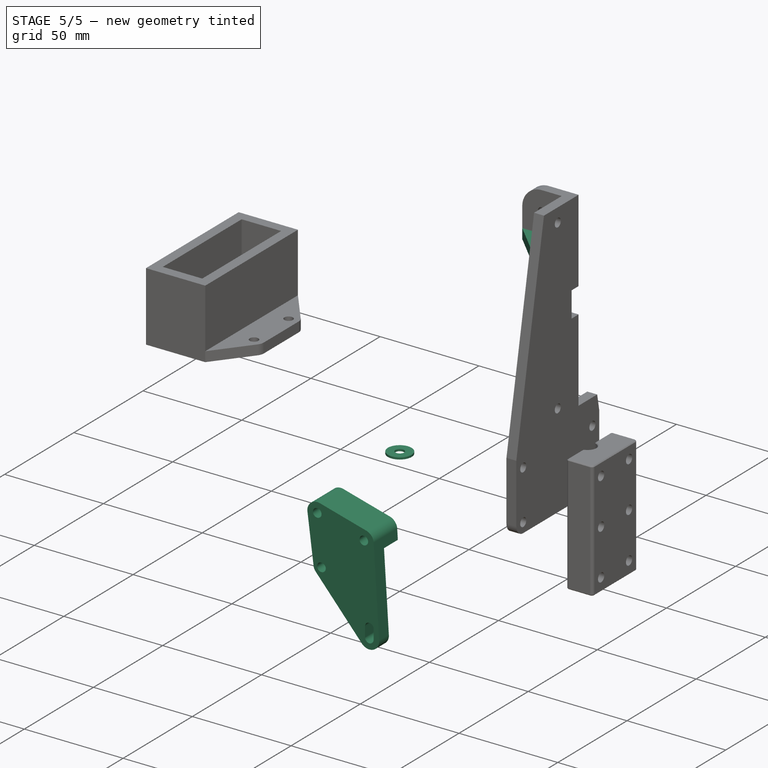
[diagram: stage 5 of 5 — iso view after this stage's code; geometry added in this stage tinted green]
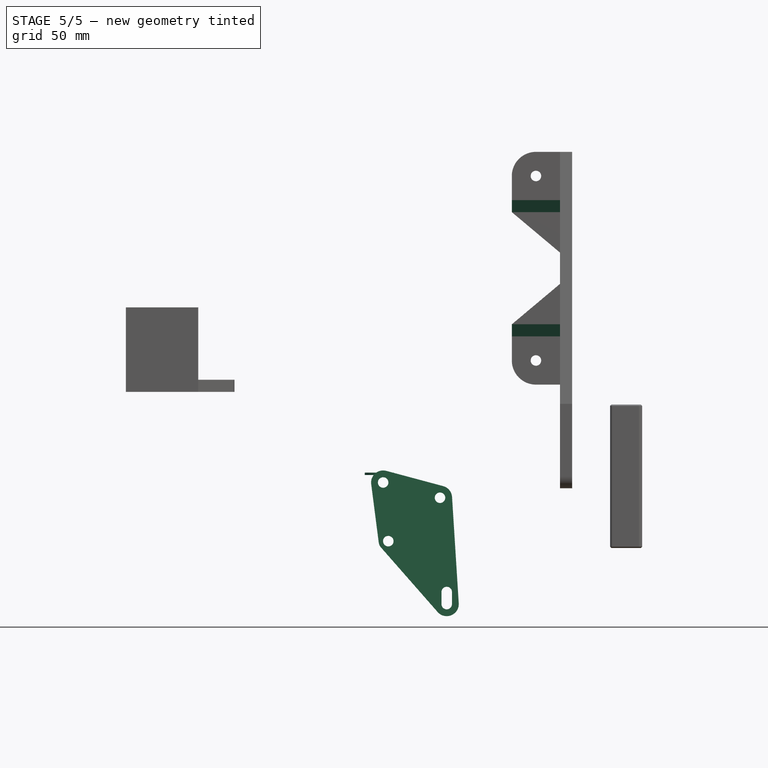
[diagram: stage 5 of 5 — front view after this stage's code; geometry added in this stage tinted green]
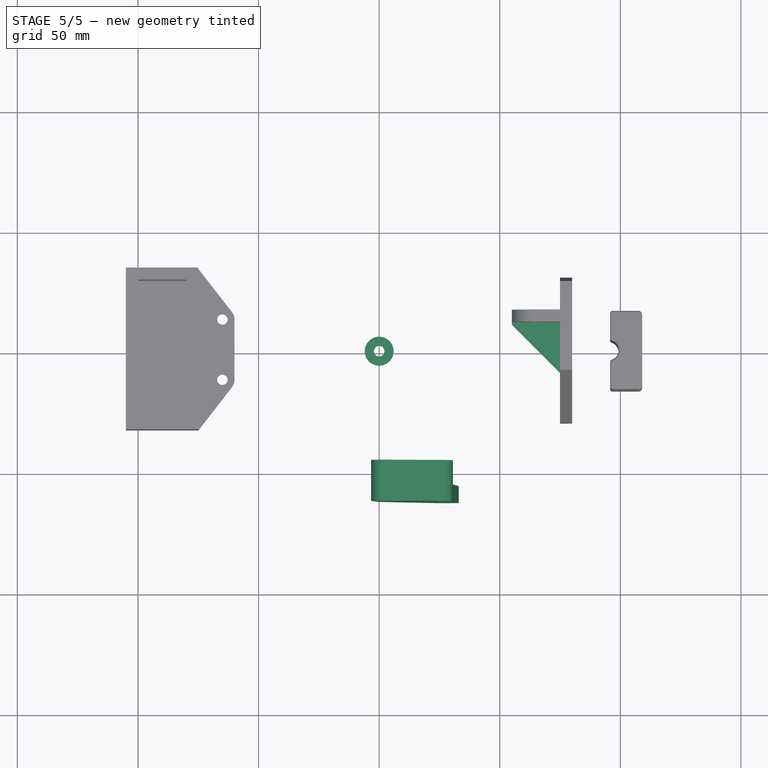
[diagram: stage 5 of 5 — top view after this stage's code; geometry added in this stage tinted green]
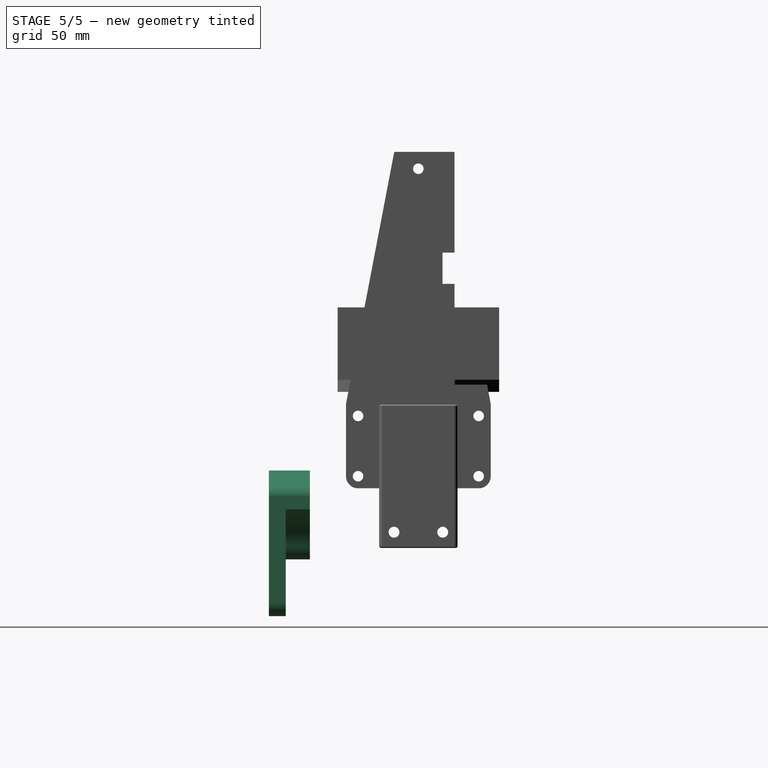
[diagram: stage 5 of 5 — right view after this stage's code; geometry added in this stage tinted green]
FEATURE [App::Point] Origin003
  Role = Origin
FEATURE [PartDesign::SubShapeBinder] Binder
  BindCopyOnChange = 0
  BindMode = 0
  ClaimChildren = false
  Context = -> Body001 [Binder.]
  Fuse = false
  MakeFace = true
  OffsetFill = false
  OffsetIntersection = false
  OffsetJoinType = 0
  OffsetOpenResult = false
  PartialLoad = false
  Refine = true
  Relative = true
  Support = -> [Body]
  _Version = 2
FEATURE [Sketcher::SketchObject] Sketch003
  ArcFitTolerance = 1e-06
  AttachmentSupport = -> [Binder]
  ExternalGeometry = -> [Binder]
  ExternalTypes = [0,0,0,0,0]
  FullyConstrained = true
  MakeInternals = false
  MapMode = 5
  Placement = pos=(0,-50,0) rot=(1,0,0;1.5708rad)
  expr: Constraints[19] = <<Variables>>#Spreadsheet.M3ThroughBoreDiam
  sketch-geometry (34):
    g0: LineSegment StartX=37.5 StartY=31.25 StartZ=0 EndX=-37.5 EndY=31.25 EndZ=0
    g1: LineSegment StartX=42.5 StartY=0.286958 StartZ=0 EndX=42.5 EndY=26.25 EndZ=0
    g2: GeomPoint X=42.5 Y=13.75 Z=0
    g3: Circle CenterX=-28 CenterY=-29 CenterZ=0 NormalX=0 NormalY=0 NormalZ=1 AngleXU=0 Radius=11.25
    g4: LineSegment [constr] StartX=-37.9 StartY=-19.1 StartZ=0 EndX=-37.9 EndY=-38.9 EndZ=0
    g5: LineSegment [constr] StartX=-37.9 StartY=-38.9 StartZ=0 EndX=-18.1 EndY=-38.9 EndZ=0
    g6: LineSegment [constr] StartX=-18.1 StartY=-38.9 StartZ=0 EndX=-18.1 EndY=-19.1 EndZ=0
    g7: LineSegment [constr] StartX=-18.1 StartY=-19.1 StartZ=0 EndX=-37.9 EndY=-19.1 EndZ=0
    g8: GeomPoint [constr] X=-28 Y=-29 Z=0
    g9: Circle CenterX=-37.9 CenterY=-19.1 CenterZ=0 NormalX=0 NormalY=0 NormalZ=1 AngleXU=0 Radius=1.75
    g10: Circle CenterX=-18.1 CenterY=-19.1 CenterZ=0 NormalX=0 NormalY=0 NormalZ=1 AngleXU=0 Radius=1.75
    g11: Circle CenterX=-18.1 CenterY=-38.9 CenterZ=0 NormalX=0 NormalY=0 NormalZ=1 AngleXU=0 Radius=1.75
    g12: Circle CenterX=-37.9 CenterY=-38.9 CenterZ=0 NormalX=0 NormalY=0 NormalZ=1 AngleXU=0 Radius=1.75
    g13: ArcOfCircle CenterX=-28 CenterY=-29 CenterZ=0 NormalX=0 NormalY=0 NormalZ=1 AngleXU=0 Radius=20 StartAngle=3.04053 EndAngle=5.34347
    g14: LineSegment StartX=-47.898 StartY=-26.9823 StartZ=0 EndX=-42.5 EndY=26.25 EndZ=0
    g15: ArcOfCircle CenterX=-37.5 CenterY=26.25 CenterZ=0 NormalX=0 NormalY=0 NormalZ=1 AngleXU=0 Radius=5 StartAngle=1.5708 EndAngle=3.14159
    g16: ArcOfCircle CenterX=37.5 CenterY=26.25 CenterZ=0 NormalX=0 NormalY=0 NormalZ=1 AngleXU=0 Radius=5 StartAngle=0 EndAngle=1.5708
    g17: GeomPoint [constr] X=42.5 Y=31.25 Z=0
    g18: ArcOfCircle CenterX=37.5 CenterY=0.286958 CenterZ=0 NormalX=0 NormalY=0 NormalZ=1 AngleXU=0 Radius=5 StartAngle=5.34347 EndAngle=6.28319
    g19: GeomPoint [constr] X=42.5 Y=-3.75 Z=0
    g20: LineSegment StartX=-16.1997 StartY=-45.1478 StartZ=0 EndX=4.17061 EndY=-30.2619 EndZ=0
    g21: GeomPoint [constr] X=28 Y=-29 Z=0
    g22: LineSegment [constr] StartX=28 StartY=-29 StartZ=0 EndX=-28 EndY=-29 EndZ=0
    g23: GeomPoint [constr] X=-1e-16 Y=-29 Z=0
    g24: ArcOfCircle CenterX=28 CenterY=-29 CenterZ=0 NormalX=0 NormalY=0 NormalZ=1 AngleXU=0 Radius=20.5 StartAngle=1.4874 EndAngle=2.91635
    g25: LineSegment StartX=36.4407 StartY=-6.67991 StartZ=0 EndX=40.4501 EndY=-3.75 EndZ=0
    g26: ArcOfCircle CenterX=30.5406 CenterY=1.39401 CenterZ=0 NormalX=0 NormalY=0 NormalZ=1 AngleXU=0 Radius=10 StartAngle=4.629 EndAngle=5.34347
    g27: ArcOfCircle CenterX=-1.72955 CenterY=-22.188 CenterZ=0 NormalX=0 NormalY=0 NormalZ=1 AngleXU=0 Radius=10 StartAngle=5.34347 EndAngle=6.05794
    g28: Circle CenterX=3.77684 CenterY=-21.9121 CenterZ=0 NormalX=0 NormalY=0 NormalZ=1 AngleXU=0 Radius=2.175
    g29: Circle CenterX=1.64571 CenterY=2.40782 CenterZ=0 NormalX=0 NormalY=0 NormalZ=1 AngleXU=0 Radius=2.175
    g30: Circle CenterX=25.2261 CenterY=-3.91404 CenterZ=0 NormalX=0 NormalY=0 NormalZ=1 AngleXU=0 Radius=2.175
    g31: LineSegment [constr] StartX=3.77684 StartY=-21.9121 StartZ=0 EndX=25.2261 EndY=-3.91404 EndZ=0
    g32: LineSegment [constr] StartX=14.5015 StartY=-12.9131 StartZ=0 EndX=1.64571 EndY=2.40782 EndZ=0
    g33: LineSegment [constr] StartX=28 StartY=-29 StartZ=0 EndX=14.5015 EndY=-12.9131 EndZ=0
  constraints (79):
    c: Horizontal(g0)
    c: Vertical(g1)
    c: Symmetric(g19,g17,g2)
    c: Horizontal(g2,g-4)
    c: DistanceY(g19,g17) = 35
    c: Diameter(g3) = 22.5
    c: Coincident(g4,g5)
    c: Coincident(g5,g6)
    c: Coincident(g6,g7)
    c: Coincident(g7,g4)
    c: Vertical(g4)
    c: Vertical(g6)
    c: Horizontal(g5)
    c: Horizontal(g7)
    c: Symmetric(g6,g4,g8)
    c: Distance(g4,g6) = 19.8
    c: Coincident(g8,g3)
    c: Equal(g6,g5)
    c: Coincident(g9,g4)
    c: Diameter(g9) = 3.5
    c: Coincident(g10,g6)
    c: Coincident(g11,g5)
    c: Coincident(g12,g4)
    c: Equal(g11,g12)
    c: Equal(g12,g9)
    c: Equal(g9,g10)
    c: DistanceX(g3) = -28
    c: DistanceY(g3) = -29
    c: Coincident(g13,g3)
    c: Radius(g13) = 20
    c: Tangent(g0,g15) = -1.5708
    c: PointOnObject(g17,g0)
    c: PointOnObject(g17,g1)
    c: Tangent(g0,g16) = -1.5708
    c: Tangent(g1,g16) = -1.5708
    c: PointOnObject(g19,g1)
    c: Tangent(g1,g18) = -1.5708
    c: Radius(g18) = 5
    c: Equal(g18,g16)
    c: Equal(g15,g16)
    c: Coincident(g14,g15)
    c: Horizontal(g14,g15)
    c: Tangent(g25,g18) = -1.5708
    c: Horizontal(g19,g18)
    c: Horizontal(g25,g19)
    c: Tangent(g20,g13) = -1.5708
    c: Horizontal(g21,g3)
    c: Coincident(g22,g21)
    c: Coincident(g22,g3)
    c: Symmetric(g22,g22,g23)
    c: PointOnObject(g23,g-2)
    c: Coincident(g24,g21)
    c: Radius(g24) = 20.5
    c: Parallel(g25,g20)
    c: Tangent(g25,g26) = -1.5708
    c: Tangent(g24,g26) = 1.5708
    c: Radius(g26) = 10
    c: PointOnObject(g25,g20)
    c: Tangent(g20,g27) = -1.5708
    c: Tangent(g24,g27) = 1.5708
    c: Equal(g27,g26)
    c: Distance(g-7,g1) = 5
    c: Tangent(g14,g13) = 1.5708
    c: DistanceX(g14,g1) = 85
    c: Coincident(g31,g28)
    c: Coincident(g31,g30)
    c: Distance(g31,g31) = 28
    c: Symmetric(g31,g31,g32)
    c: Coincident(g32,g29)
    c: Perpendicular(g31,g32)
    c: Distance(g32,g32) = 20
    c: Angle(g31,g-1) = 2.44346
    c: Coincident(g33,g21)
    c: Coincident(g33,g32)
    c: Perpendicular(g31,g33)
    c: Distance(g33,g33) = 21
    c: Equal(g30,g29)
    c: Equal(g29,g28)
    c: Equal(g28,g-6)
FEATURE [PartDesign::Pad] Pad002
  Direction = (0,-1,2e-16)
  Length = 5
  Length2 = 10
  Profile = -> Sketch003
  ReferenceAxis = -> Sketch003 [N_Axis]
  Refine = true
  Suppressed = false
  Type = 0
FEATURE [Sketcher::SketchObject] Sketch013
  ArcFitTolerance = 1e-06
  AttachmentOffset = pos=(0,0,-25) rot=(0,0,1;0rad)
  AttachmentSupport = -> [Pad006]
  ExternalGeometry = -> [Pad006]
  ExternalTypes = [0,0]
  FullyConstrained = true
  MakeInternals = false
  MapMode = 5
  Placement = pos=(-1.191e-13,-8.93e-14,114.5) rot=(0,0,1;0rad)
  sketch-geometry (3):
    g0: LineSegment StartX=55 StartY=10 StartZ=0 EndX=75 EndY=-10 EndZ=0
    g1: LineSegment StartX=75 StartY=10 StartZ=0 EndX=75 EndY=-10 EndZ=0
    g2: LineSegment StartX=55 StartY=10 StartZ=0 EndX=75 EndY=10 EndZ=0
  constraints (7):
    c: Coincident(g2,g0)
    c: Horizontal(g2)
    c: Coincident(g1,g2)
    c: Coincident(g1,g0)
    c: Coincident(g0,g-3)
    c: Vertical(g1)
    c: Coincident(g0,g-4)
FEATURE [PartDesign::Pad] Pad008
  BaseFeature = -> Pad006
  Direction = (-1e-15,0,1)
  Length = 5
  Length2 = 10
  Profile = -> Sketch013
  ReferenceAxis = -> Sketch013 [N_Axis]
  Refine = true
  Suppressed = false
  Type = 0
FEATURE [Sketcher::SketchObject] Sketch015
  ArcFitTolerance = 1e-06
  AttachmentSupport = -> [Pad002]
  ExternalGeometry = -> [Pad002]
  ExternalTypes = [0,0,0,0,0]
  FullyConstrained = true
  MakeInternals = false
  MapMode = 5
  Placement = pos=(0,-55,1.26e-14) rot=(1,0,0;1.5708rad)
  sketch-geometry (16):
    g0: ArcOfCircle CenterX=-37.9 CenterY=-38.9 CenterZ=0 NormalX=0 NormalY=0 NormalZ=1 AngleXU=0 Radius=4 StartAngle=2.23331 EndAngle=5.62067
    g1: ArcOfCircle CenterX=-18.1 CenterY=-38.9 CenterZ=0 NormalX=0 NormalY=0 NormalZ=1 AngleXU=0 Radius=4 StartAngle=3.80411 EndAngle=7.19146
    g2: ArcOfCircle CenterX=-18.1 CenterY=-19.1 CenterZ=0 NormalX=0 NormalY=0 NormalZ=1 AngleXU=0 Radius=4 StartAngle=5.37491 EndAngle=8.76226
    g3: ArcOfCircle CenterX=-37.9 CenterY=-19.1 CenterZ=0 NormalX=0 NormalY=0 NormalZ=1 AngleXU=0 Radius=4 StartAngle=0.662517 EndAngle=4.04987
    g4: ArcOfCircle CenterX=-31.5924 CenterY=-14.1792 CenterZ=0 NormalX=0 NormalY=0 NormalZ=1 AngleXU=0 Radius=4 StartAngle=3.80411 EndAngle=4.95019
    g5: ArcOfCircle CenterX=-24.4076 CenterY=-14.1792 CenterZ=0 NormalX=0 NormalY=0 NormalZ=1 AngleXU=0 Radius=4 StartAngle=4.47458 EndAngle=5.62067
    g6: ArcOfCircle CenterX=-13.1792 CenterY=-25.4076 CenterZ=0 NormalX=0 NormalY=0 NormalZ=1 AngleXU=0 Radius=4 StartAngle=2.23331 EndAngle=3.3794
    g7: ArcOfCircle CenterX=-24.4076 CenterY=-43.8208 CenterZ=0 NormalX=0 NormalY=0 NormalZ=1 AngleXU=0 Radius=4 StartAngle=0.662517 EndAngle=1.8086
    g8: ArcOfCircle CenterX=-13.1792 CenterY=-32.5924 CenterZ=0 NormalX=0 NormalY=0 NormalZ=1 AngleXU=0 Radius=4 StartAngle=2.90379 EndAngle=4.04987
    g9: ArcOfCircle CenterX=-31.5924 CenterY=-43.8208 CenterZ=0 NormalX=0 NormalY=0 NormalZ=1 AngleXU=0 Radius=4 StartAngle=1.33299 EndAngle=2.47908
    g10: ArcOfCircle CenterX=-42.8208 CenterY=-32.5924 CenterZ=0 NormalX=0 NormalY=0 NormalZ=1 AngleXU=0 Radius=4 StartAngle=5.37491 EndAngle=6.52099
    g11: ArcOfCircle CenterX=-42.8208 CenterY=-25.4076 CenterZ=0 NormalX=0 NormalY=0 NormalZ=1 AngleXU=0 Radius=4 StartAngle=6.04538 EndAngle=7.19146
    g12: ArcOfCircle CenterX=-28 CenterY=-29 CenterZ=0 NormalX=0 NormalY=0 NormalZ=1 AngleXU=0 Radius=11.25 StartAngle=1.8086 EndAngle=2.90379
    g13: ArcOfCircle CenterX=-28 CenterY=-29 CenterZ=0 NormalX=0 NormalY=0 NormalZ=1 AngleXU=0 Radius=11.25 StartAngle=0.237804 EndAngle=1.33299
    g14: ArcOfCircle CenterX=-28 CenterY=-29 CenterZ=0 NormalX=0 NormalY=0 NormalZ=1 AngleXU=0 Radius=11.25 StartAngle=4.95019 EndAngle=6.04538
    g15: ArcOfCircle CenterX=-28 CenterY=-29 CenterZ=0 NormalX=0 NormalY=0 NormalZ=1 AngleXU=0 Radius=11.25 StartAngle=3.3794 EndAngle=4.47458
  constraints (42):
    c: Coincident(g0,g-5)
    c: Coincident(g1,g-6)
    c: Coincident(g2,g-3)
    c: Coincident(g3,g-4)
    c: Tangent(g4,g-7) = 1.5708
    c: Tangent(g7,g-7) = 1.5708
    c: Tangent(g11,g-7) = 1.5708
    c: Tangent(g5,g-7) = 1.5708
    c: Tangent(g6,g-7) = 1.5708
    c: Tangent(g8,g-7) = 1.5708
    c: Tangent(g9,g-7) = 1.5708
    c: Tangent(g10,g-7) = 1.5708
    c: Equal(g10,g9)
    c: Equal(g8,g6)
    c: Equal(g6,g5)
    c: Equal(g5,g4)
    c: Radius(g11) = 4
    c: Equal(g9,g7)
    c: Coincident(g12,g4)
    c: Coincident(g12,g11)
    c: Coincident(g13,g12)
    c: Coincident(g13,g6)
    c: Coincident(g13,g5)
    c: Coincident(g14,g7)
    c: Coincident(g14,g8)
    c: Coincident(g15,g14)
    c: Coincident(g15,g10)
    c: Coincident(g15,g9)
    c: Equal(g10,g11)
    c: Diameter(g0) = 8
    c: Equal(g1,g0)
    c: Equal(g4,g3)
    c: Equal(g2,g1)
    c: Equal(g3,g2)
    c: Tangent(g2,g6) = 1.5708
    c: Tangent(g5,g2) = 1.5708
    c: Tangent(g1,g8) = 1.5708
    c: Tangent(g1,g7) = 1.5708
    c: Tangent(g0,g9) = 1.5708
    c: Tangent(g0,g10) = 1.5708
    c: Tangent(g3,g4) = 1.5708
    c: Tangent(g3,g11) = 1.5708
FEATURE [PartDesign::Pocket] Pocket
  BaseFeature = -> Pad002
  Direction = (0,1,-2e-16)
  Length = 0
  Length2 = 5
  Offset = 2
  Profile = -> Sketch015
  ReferenceAxis = -> Sketch015 [N_Axis]
  Refine = true
  Suppressed = false
  Type = 3
  UpToFace = -> Pad002 [Face26]
FEATURE [Sketcher::SketchObject] Sketch016
  ArcFitTolerance = 1e-06
  AttachmentSupport = -> [Pocket]
  ExternalGeometry = -> [Pocket]
  ExternalTypes = [0,0,0,0]
  FullyConstrained = true
  MakeInternals = false
  MapMode = 5
  Placement = pos=(0,-50,1.15e-14) rot=(0,0.707107,0.707107;3.14159rad)
  sketch-geometry (5):
    g0: Circle CenterX=-1.64571 CenterY=2.40782 CenterZ=0 NormalX=0 NormalY=0 NormalZ=1 AngleXU=0 Radius=5
    g1: ArcOfCircle CenterX=-25.2261 CenterY=-3.91404 CenterZ=0 NormalX=0 NormalY=0 NormalZ=1 AngleXU=0 Radius=5 StartAngle=1e-16 EndAngle=2.92133
    g2: LineSegment StartX=-20.2261 StartY=-3.91404 StartZ=0 EndX=-20.2261 EndY=-10.0312 EndZ=0
    g3: LineSegment StartX=-30.1053 StartY=-2.82163 StartZ=0 EndX=-31.4418 EndY=-8.79099 EndZ=0
    g4: ArcOfCircle CenterX=-28 CenterY=-29 CenterZ=0 NormalX=0 NormalY=0 NormalZ=1 AngleXU=0 Radius=20.5 StartAngle=1.18185 EndAngle=1.73949
  constraints (13):
    c: Diameter(g0) = 10
    c: Coincident(g0,g-3)
    c: Coincident(g1,g-4)
    c: PointOnObject(g2,g-5)
    c: Vertical(g2)
    c: Equal(g3,g2)
    c: Equal(g1,g0)
    c: Tangent(g1,g3) = -1.5708
    c: Tangent(g1,g2) = 1.5708
    c: Coincident(g4,g2)
    c: Equal(g4,g-5)
    c: Coincident(g4,g3)
    c: PointOnObject(g3,g-5)
FEATURE [PartDesign::Pocket] Pocket007
  BaseFeature = -> Pocket
  Direction = (0,-1,2e-16)
  Length = 3.5
  Length2 = 5
  Profile = -> Sketch016
  ReferenceAxis = -> Sketch016 [N_Axis]
  Refine = true
  Suppressed = false
  Type = 0
FEATURE [PartDesign::Body] Body001  label="Motor Mount"
  AllowCompound = true
  Group = -> [Binder,Sketch003,Pad002,Sketch015,Pocket,Sketch016,Pocket007]
  Origin = -> Origin002
  Tip = -> Pocket007
FEATURE [App::Point] Origin009
  Role = Origin
FEATURE [PartDesign::SubShapeBinder] Binder003
  BindCopyOnChange = 0
  BindMode = 0
  ClaimChildren = false
  Context = -> Body004 [Binder003.]
  Fuse = false
  MakeFace = true
  OffsetFill = false
  OffsetIntersection = false
  OffsetJoinType = 0
  OffsetOpenResult = false
  PartialLoad = false
  Refine = true
  Relative = true
  Support = -> [Body001]
  _Version = 2
FEATURE [Sketcher::SketchObject] Sketch017
  ArcFitTolerance = 1e-06
  AttachmentSupport = -> [Binder003]
  ExternalGeometry = -> [Binder003]
  ExternalTypes = [0,0,0,0]
  FullyConstrained = true
  MakeInternals = false
  MapMode = 5
  Placement = pos=(0,-55,1.26e-14) rot=(1,0,0;1.5708rad)
  expr: Constraints[13] = Variables#Spreadsheet.WheelDiam
  sketch-geometry (18):
    g0: LineSegment [constr] StartX=-28 StartY=-29 StartZ=0 EndX=28 EndY=-29 EndZ=0
    g1: GeomPoint X=0 Y=-29 Z=0
    g2: ArcOfCircle CenterX=3.77684 CenterY=-21.9121 CenterZ=0 NormalX=0 NormalY=0 NormalZ=1 AngleXU=0 Radius=4 StartAngle=3.26997 EndAngle=3.86185
    g3: ArcOfCircle CenterX=1.64571 CenterY=2.40782 CenterZ=0 NormalX=0 NormalY=0 NormalZ=1 AngleXU=0 Radius=5 StartAngle=1.30886 EndAngle=3.26997
    g4: ArcOfCircle CenterX=25.2261 CenterY=-3.91404 CenterZ=0 NormalX=0 NormalY=0 NormalZ=1 AngleXU=0 Radius=5 StartAngle=0.0628378 EndAngle=1.30886
    g5: LineSegment StartX=-3.31315 StartY=1.76769 StartZ=0 EndX=-0.190245 EndY=-22.4242 EndZ=0
    g6: LineSegment StartX=26.5209 StartY=0.915409 StartZ=0 EndX=2.94048 EndY=7.23727 EndZ=0
    g7: LineSegment StartX=30.2162 StartY=-3.60006 StartZ=0 EndX=32.9901 EndY=-47.686 EndZ=0
    g8: LineSegment StartX=24.2418 StartY=-51.2979 StartZ=0 EndX=0.770293 EndY=-24.5504 EndZ=0
    g9: Circle [constr] CenterX=-28 CenterY=-29 CenterZ=0 NormalX=0 NormalY=0 NormalZ=1 AngleXU=0 Radius=27.5
    g10: LineSegment [constr] StartX=-28 StartY=-56.5 StartZ=0 EndX=28 EndY=-56.5 EndZ=0
    g11: LineSegment [constr] StartX=28 StartY=-43 StartZ=0 EndX=28 EndY=-48 EndZ=0
    g12: ArcOfCircle CenterX=28 CenterY=-48 CenterZ=0 NormalX=0 NormalY=0 NormalZ=1 AngleXU=0 Radius=2.175 StartAngle=3.14159 EndAngle=6.28319
    g13: ArcOfCircle CenterX=28 CenterY=-43 CenterZ=0 NormalX=0 NormalY=0 NormalZ=1 AngleXU=0 Radius=2.175 StartAngle=1e-15 EndAngle=3.14159
    g14: LineSegment StartX=30.175 StartY=-48 StartZ=0 EndX=30.175 EndY=-43 EndZ=0
    g15: LineSegment StartX=25.825 StartY=-43 StartZ=0 EndX=25.825 EndY=-48 EndZ=0
    g16: ArcOfCircle CenterX=28 CenterY=-48 CenterZ=0 NormalX=0 NormalY=0 NormalZ=1 AngleXU=0 Radius=5 StartAngle=3.86185 EndAngle=6.34602
    g17: GeomPoint X=28 Y=-45.5 Z=0
  constraints (38):
    c: Horizontal(g0)
    c: Symmetric(g0,g0,g1)
    c: PointOnObject(g1,g-2)
    c: Coincident(g4,g-6)
    c: Coincident(g2,g-4)
    c: Coincident(g-5,g3)
    c: Tangent(g8,g2) = 1.5708
    c: Tangent(g5,g2) = -1.5708
    c: Tangent(g5,g3) = -1.5708
    c: Tangent(g6,g3) = -1.5708
    c: Tangent(g6,g4) = -1.5708
    c: Tangent(g7,g4) = 1.5708
    c: Coincident(g9,g0)
    c: Diameter(g9) = 55
    c: Tangent(g10,g9) = -1.5708
    c: Horizontal(g10)
    c: Vertical(g11)
    c: DistanceY(g11,g11) = 5
    c: Coincident(g12,g11)
    c: Coincident(g13,g11)
    c: Vertical(g14)
    c: Tangent(g12,g15) = -1.5708
    c: Tangent(g15,g13) = -1.5708
    c: Tangent(g13,g14) = -1.5708
    c: Tangent(g14,g12) = -1.5708
    c: Coincident(g16,g11)
    c: Tangent(g16,g7) = 1.5708
    c: Tangent(g8,g16) = 1.5708
    c: Vertical(g11,g0)
    c: Coincident(g0,g-3)
    c: Symmetric(g11,g11,g17)
    c: Distance(g17,g10) = 11
    c: Radius(g16) = 5
    c: Vertical(g10,g0)
    c: Radius(g2) = 4
    c: Equal(g3,g4)
    c: Equal(g4,g16)
    c: Equal(g12,g-4)
FEATURE [PartDesign::Pad] Pad010
  Direction = (0,-1,2e-16)
  Length = 7
  Length2 = 10
  Profile = -> Sketch017
  ReferenceAxis = -> Sketch017 [N_Axis]
  Refine = true
  Suppressed = false
  Type = 0
FEATURE [Sketcher::SketchObject] Sketch018
  ArcFitTolerance = 1e-06
  AttachmentSupport = -> [Pad010]
  ExternalGeometry = -> [Pad010,Binder003]
  ExternalTypes = [0,0,0,0,0,0,0,0,0,0,0,0,0]
  FullyConstrained = true
  MakeInternals = false
  MapMode = 5
  Placement = pos=(0,-55,1.37e-14) rot=(0,0.707107,0.707107;3.14159rad)
  sketch-geometry (9):
    g0: LineSegment StartX=-30.5344 StartY=-8.65727 StartZ=0 EndX=-30.2162 EndY=-3.60006 EndZ=0
    g1: ArcOfCircle CenterX=-25.2261 CenterY=-3.91404 CenterZ=0 NormalX=0 NormalY=0 NormalZ=1 AngleXU=0 Radius=5 StartAngle=1.83273 EndAngle=3.07875
    g2: LineSegment StartX=-26.5209 StartY=0.915409 StartZ=0 EndX=-2.94048 EndY=7.23727 EndZ=0
    g3: ArcOfCircle CenterX=-1.64571 CenterY=2.40782 CenterZ=0 NormalX=0 NormalY=0 NormalZ=1 AngleXU=0 Radius=5 StartAngle=6.15481 EndAngle=8.11592
    g4: LineSegment StartX=3.31315 StartY=1.76769 StartZ=0 EndX=0.190245 EndY=-22.4242 EndZ=0
    g5: LineSegment StartX=-0.770293 StartY=-24.5504 StartZ=0 EndX=-5.10393 EndY=-29.4889 EndZ=0
    g6: ArcOfCircle CenterX=-3.77684 CenterY=-21.9121 CenterZ=0 NormalX=0 NormalY=0 NormalZ=1 AngleXU=0 Radius=4 StartAngle=5.56293 EndAngle=6.15481
    g7: ArcOfCircle CenterX=1.72955 CenterY=-22.188 CenterZ=0 NormalX=0 NormalY=0 NormalZ=1 AngleXU=0 Radius=10 StartAngle=3.36684 EndAngle=3.96005
    g8: ArcOfCircle CenterX=-28 CenterY=-29 CenterZ=0 NormalX=0 NormalY=0 NormalZ=1 AngleXU=0 Radius=20.5 StartAngle=0.225245 EndAngle=1.69474
  constraints (25):
    c: Coincident(g0,g-7)
    c: Coincident(g1,g0)
    c: Coincident(g1,g-8)
    c: Equal(g-7,g1)
    c: Coincident(g2,g1)
    c: Coincident(g2,g-9)
    c: Coincident(g3,g2)
    c: Coincident(g3,g-10)
    c: Equal(g-9,g3)
    c: Coincident(g4,g3)
    c: Coincident(g4,g-11)
    c: Coincident(g5,g-12)
    c: PointOnObject(g5,g-5)
    c: PointOnObject(g5,g-12)
    c: Coincident(g6,g5)
    c: Coincident(g6,g4)
    c: Equal(g-11,g6)
    c: Coincident(g7,g5)
    c: Coincident(g7,g-5)
    c: Equal(g7,g-5)
    c: Coincident(g8,g7)
    c: Equal(g-3,g8)
    c: PointOnObject(g8,g-6)
    c: PointOnObject(g8,g-3)
    c: Coincident(g0,g8)
FEATURE [PartDesign::Pad] Pad011
  BaseFeature = -> Pad010
  Direction = (0,1,-2e-16)
  Length = 10
  Length2 = 10
  Profile = -> Sketch018
  ReferenceAxis = -> Sketch018 [N_Axis]
  Refine = true
  Suppressed = false
  Type = 0
FEATURE [PartDesign::Body] Body004  label="Bearing Wheel Mount Right"
  AllowCompound = true
  Group = -> [Binder003,Sketch017,Pad010,Sketch018,Pad011]
  Origin = -> Origin008
  Tip = -> Pad011
FEATURE [App::Point] Origin011
  Role = Origin
FEATURE [Sketcher::SketchObject] Sketch019
  ArcFitTolerance = 1e-06
  AttachmentSupport = -> [XY_Plane005]
  ExternalTypes = [0]
  FullyConstrained = true
  MakeInternals = false
  MapMode = 5
  expr: Constraints[3] = Variables#Spreadsheet.M4ThroughBoreDiam
  sketch-geometry (2):
    g0: Circle CenterX=8.8e-15 CenterY=0 CenterZ=0 NormalX=0 NormalY=0 NormalZ=1 AngleXU=0 Radius=4.075
    g1: Circle CenterX=8.8e-15 CenterY=0 CenterZ=0 NormalX=0 NormalY=0 NormalZ=1 AngleXU=0 Radius=2.175
  constraints (4):
    c: Diameter(g0) = 8.15
    c: Coincident(g0,g-1)
    c: Coincident(g1,g0)
    c: Diameter(g1) = 4.35
FEATURE [PartDesign::Pad] Pad012
  Direction = (0,0,1)
  Length = 5.5
  Length2 = 10
  Profile = -> Sketch019
  ReferenceAxis = -> Sketch019 [N_Axis]
  Refine = true
  Suppressed = false
  Type = 0
FEATURE [Sketcher::SketchObject] Sketch020
  ArcFitTolerance = 1e-06
  AttachmentSupport = -> [Pad012]
  ExternalGeometry = -> [Pad012]
  ExternalTypes = [0]
  FullyConstrained = true
  MakeInternals = false
  MapMode = 5
  Placement = pos=(0,0,0) rot=(1,0,0;3.14159rad)
  sketch-geometry (1):
    g0: Circle CenterX=0 CenterY=0 CenterZ=0 NormalX=0 NormalY=0 NormalZ=1 AngleXU=0 Radius=6
  constraints (2):
    c: Diameter(g0) = 12
    c: Coincident(g0,g-1)
FEATURE [PartDesign::Pad] Pad013
  BaseFeature = -> Pad012
  Direction = (0,0,-1)
  Length = 1
  Length2 = 10
  Profile = -> Sketch020
  ReferenceAxis = -> Sketch020 [N_Axis]
  Refine = true
  Suppressed = false
  Type = 0
FEATURE [PartDesign::Body] Body005  label="Bearing Shaft"
  AllowCompound = true
  Group = -> [Sketch019,Pad012,Sketch020,Pad013]
  Origin = -> Origin010
  Tip = -> Pad013
FEATURE [App::Point] Origin013
  Role = Origin
FEATURE [PartDesign::SubShapeBinder] Binder004
  BindCopyOnChange = 0
  BindMode = 0
  ClaimChildren = false
  Context = -> Body006 [Binder004.]
  Fuse = false
  MakeFace = true
  OffsetFill = false
  OffsetIntersection = false
  OffsetJoinType = 0
  OffsetOpenResult = false
  PartialLoad = false
  Refine = true
  Relative = true
  Support = -> [Body005]
  _Version = 2
FEATURE [Sketcher::SketchObject] Sketch021
  ArcFitTolerance = 1e-06
  AttachmentSupport = -> [Binder004]
  ExternalGeometry = -> [Binder004]
  ExternalTypes = [0,0]
  FullyConstrained = true
  MakeInternals = false
  MapMode = 5
  Placement = pos=(0,0,5.5) rot=(0,0,1;0rad)
FEATURE [PartDesign::Pad] Pad014
  Direction = (0,0,1)
  Length = 1
  Length2 = 10
  Profile = -> Sketch021
  ReferenceAxis = -> Sketch021 [N_Axis]
  Refine = true
  Suppressed = false
  Type = 0
FEATURE [PartDesign::Body] Body006  label="Bearing Shaft End"
  AllowCompound = true
  Group = -> [Binder004,Sketch021,Pad014]
  Origin = -> Origin012
  Tip = -> Pad014
FEATURE [Part::DatumPlane] DatumPlane
  AttachmentSupport = -> [Pad008]
  MapMode = 45
  Placement = pos=(75,10,91.25) rot=(0,0,1;0rad)
FEATURE [PartDesign::Mirrored] Mirrored
  BaseFeature = -> Pad008
  MirrorPlane = -> DatumPlane
  Originals = -> [Pad008]
  Refine = true
  Suppressed = false
  TransformMode = 0
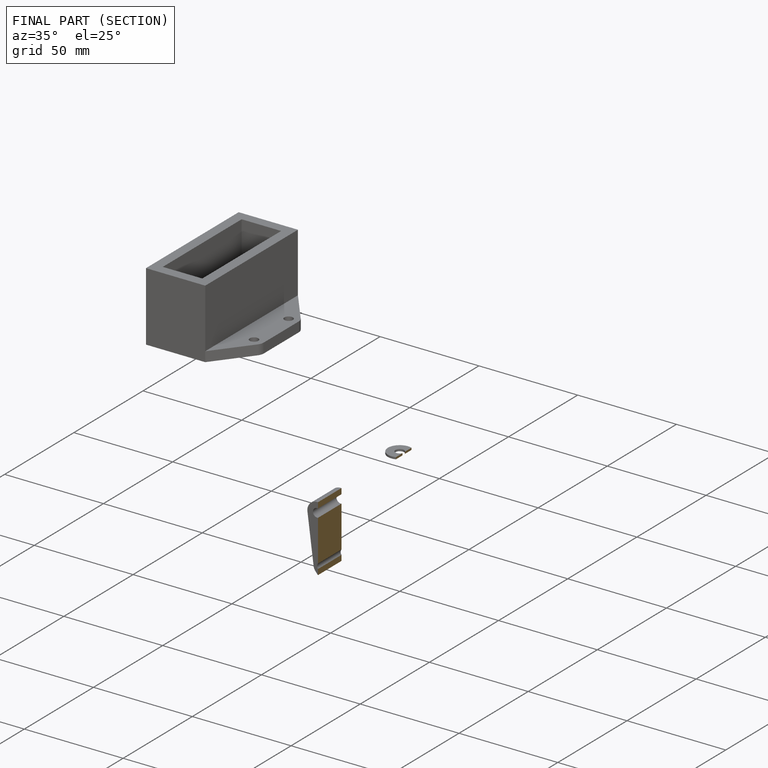
[diagram: finished part — half-section view (interior)]
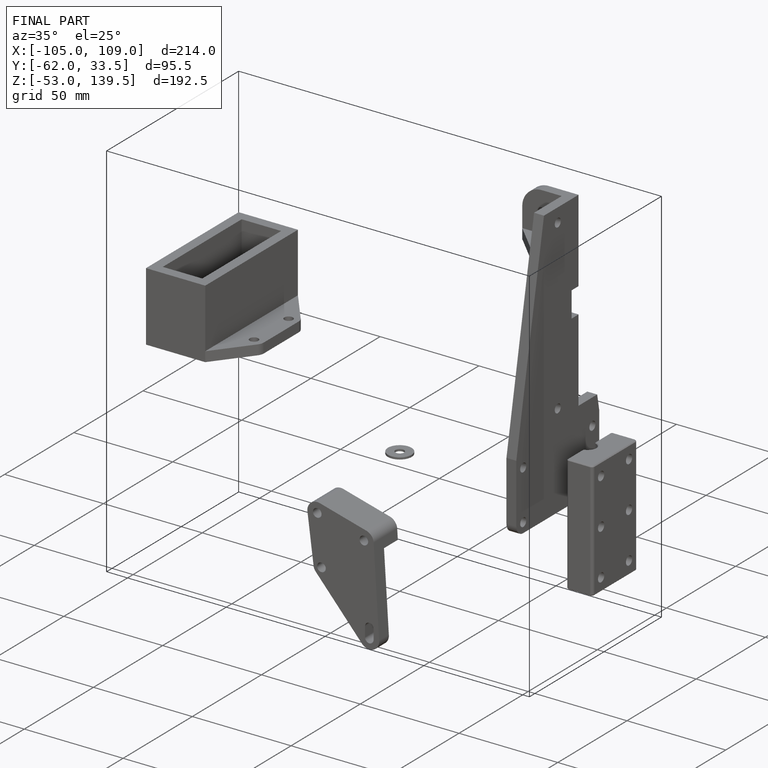
[diagram: finished part — iso view with bounding-box wireframe]
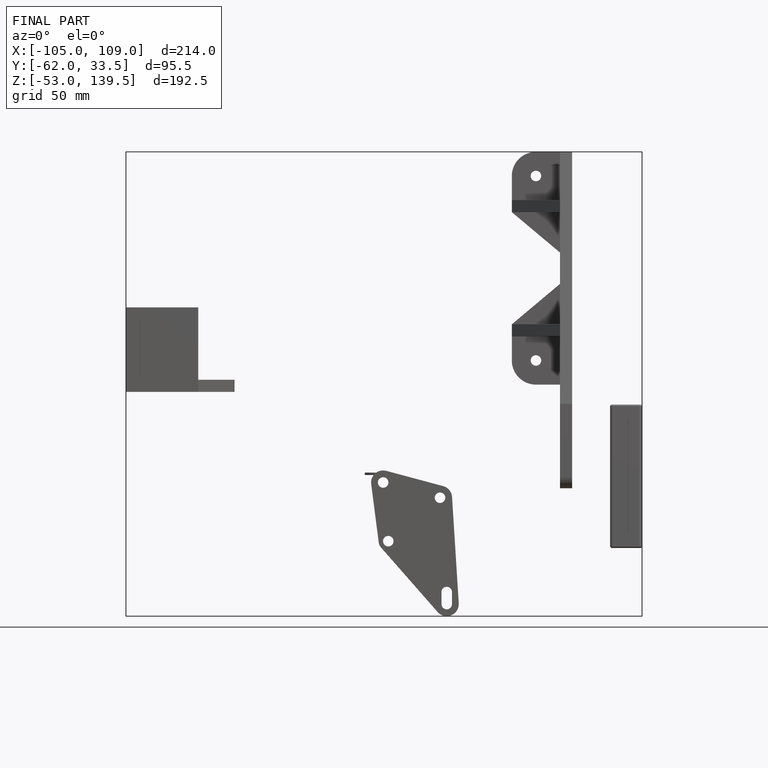
[diagram: finished part — front view with bounding-box wireframe]
